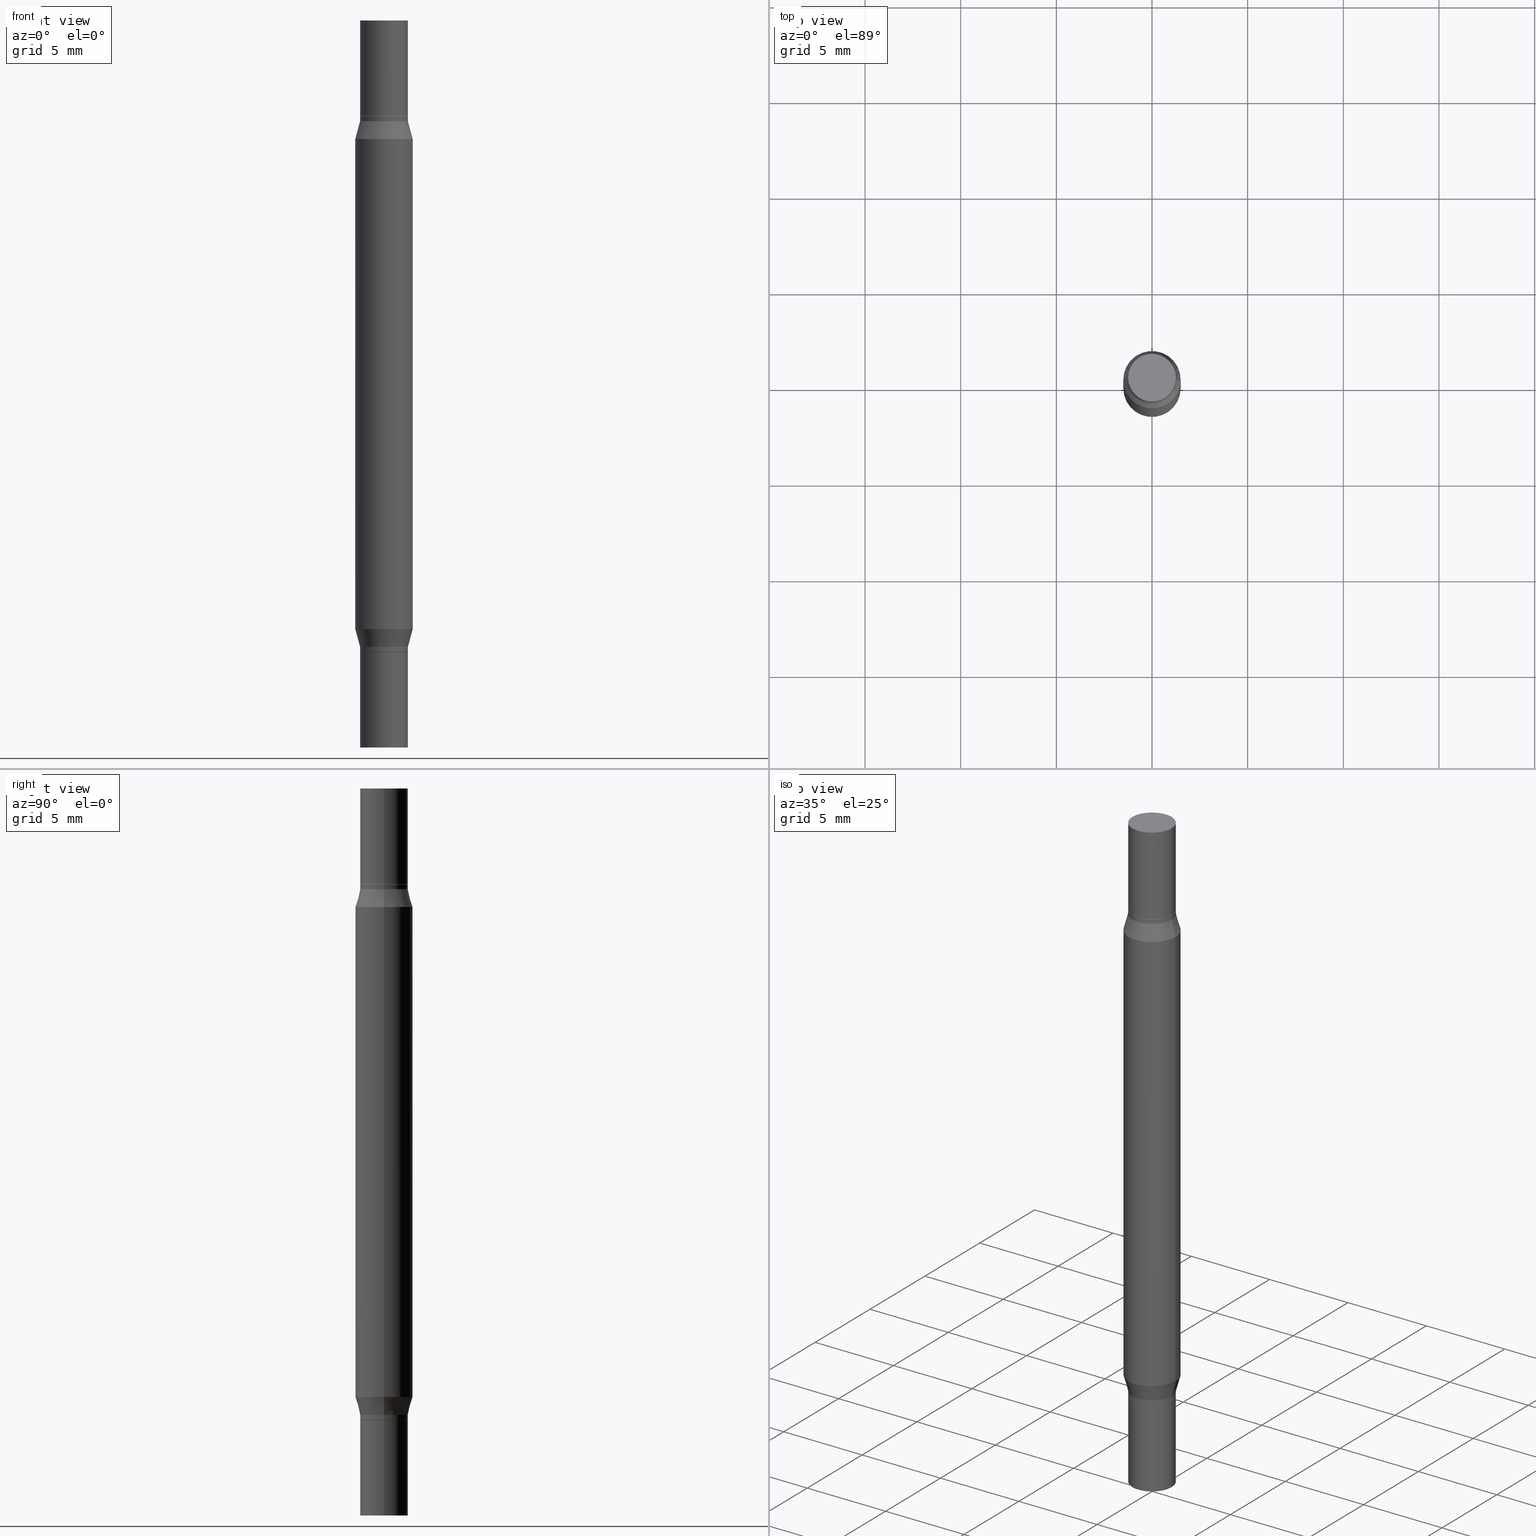
[diagram: canonical four-view strip — front | top / right | iso, engineering-drawing reading convention]
A machine part, canonical four-view strip (front | top / right | iso — engineering-drawing reading convention). The complete STEP part file that produces these views, byte-faithful:
ISO-10303-21;
HEADER;
FILE_DESCRIPTION (( 'STEP AP203' ),
    '1' );
FILE_NAME ('41417.STEP',
    '2024-03-04T16:08:20',
    ( '' ),
    ( '' ),
    'SwSTEP 2.0',
    'SolidWorks 2023',
    '' );
FILE_SCHEMA (( 'CONFIG_CONTROL_DESIGN' ));
ENDSEC;

DATA;
#1 = CARTESIAN_POINT ( 'NONE',  ( 0.04920000000000000068, -5.567409180549447565E-15, -1.496099999999999985 ) ) ;
#2 = DIRECTION ( 'NONE',  ( -2.445468806185136597E-29, 3.491481338843145583E-15, 1.000000000000000000 ) ) ;
#3 = DIRECTION ( 'NONE',  ( -2.445468806185136597E-29, -3.491805094961124077E-15, -1.000000000000000000 ) ) ;
#4 = DIRECTION ( 'NONE',  ( -2.445468806185136597E-29, 3.491481338843145583E-15, 1.000000000000000000 ) ) ;
#5 = ADVANCED_FACE ( 'NONE', ( #209 ), #276, .F. ) ;
#6 = CARTESIAN_POINT ( 'NONE',  ( 3.175930338592637077E-29, -6.890401399812727626E-16, -0.1973999999999999089 ) ) ;
#7 = DIRECTION ( 'NONE',  ( -2.445468806185136597E-29, -3.491805094961124077E-15, -1.000000000000000000 ) ) ;
#8 = VERTEX_POINT ( 'NONE', #570 ) ;
#9 = APPROVAL_ROLE ( '' ) ;
#10 = DIRECTION ( 'NONE',  ( 1.000000000000000000, -6.982962677686273021E-15, 0.000000000000000000 ) ) ;
#11 = AXIS2_PLACEMENT_3D ( 'NONE', #360, #584, #520 ) ;
#12 = CARTESIAN_POINT ( 'NONE',  ( 3.658665880933582389E-29, -5.223605231043229660E-15, -1.496099999999999985 ) ) ;
#13 = ORIENTED_EDGE ( 'NONE', *, *, #647, .T. ) ;
#14 = CARTESIAN_POINT ( 'NONE',  ( 0.04920000000000000068, -1.030856001175955426E-15, -0.1969000000000000195 ) ) ;
#15 = DIRECTION ( 'NONE',  ( 1.000000000000000000, -6.982962677686271444E-15, 0.000000000000000000 ) ) ;
#16 = ORIENTED_EDGE ( 'NONE', *, *, #552, .T. ) ;
#17 = EDGE_CURVE ( 'NONE', #459, #167, #955, .T. ) ;
#18 = CARTESIAN_POINT ( 'NONE',  ( 0.04920000000000000068, -3.433195779781105028E-16, 1.112302229232114997E-34 ) ) ;
#19 = ORIENTED_EDGE ( 'NONE', *, *, #641, .T. ) ;
#20 = APPROVAL ( #795, 'UNSPECIFIED' ) ;
#21 = DIRECTION ( 'NONE',  ( 2.445468806185136597E-29, 3.491805094961124077E-15, 1.000000000000000000 ) ) ;
#22 = PLANE ( 'NONE',  #883 ) ;
#23 = CARTESIAN_POINT ( 'NONE',  ( 0.000000000000000000, -5.223847416807283040E-15, -1.496099999999999985 ) ) ;
#24 = VERTEX_POINT ( 'NONE', #129 ) ;
#25 = CIRCLE ( 'NONE', #901, 0.04919999999999992435 ) ;
#26 = AXIS2_PLACEMENT_3D ( 'NONE', #262, #931, #554 ) ;
#27 = CARTESIAN_POINT ( 'NONE',  ( 0.000000000000000000, 0.000000000000000000, 0.000000000000000000 ) ) ;
#28 = CARTESIAN_POINT ( 'NONE',  ( 0.000000000000000000, 0.000000000000000000, 0.000000000000000000 ) ) ;
#29 = APPROVAL_PERSON_ORGANIZATION ( #888, #666, #9 ) ;
#30 = CARTESIAN_POINT ( 'NONE',  ( 0.04919999999999993129, -5.567409180549447565E-15, -1.496099999999999985 ) ) ;
#31 = CARTESIAN_POINT ( 'NONE',  ( 3.177153072995728757E-29, -6.872942374337910995E-16, -0.1969000000000000195 ) ) ;
#32 = ORIENTED_EDGE ( 'NONE', *, *, #925, .T. ) ;
#33 = DIRECTION ( 'NONE',  ( -2.445468806185136877E-29, -3.491805094961123683E-15, -1.000000000000000000 ) ) ;
#34 = EDGE_CURVE ( 'NONE', #927, #70, #649, .T. ) ;
#35 =( LENGTH_UNIT ( ) NAMED_UNIT ( * ) SI_UNIT ( $, .METRE. ) );
#36 = APPROVAL_ROLE ( '' ) ;
#37 = ORIENTED_EDGE ( 'NONE', *, *, #707, .F. ) ;
#38 = CARTESIAN_POINT ( 'NONE',  ( -0.04920000000000000068, -4.530281867240153147E-15, -1.496099999999999985 ) ) ;
#39 = DIRECTION ( 'NONE',  ( 1.000000000000000000, -6.982962677686261977E-15, 0.000000000000000000 ) ) ;
#40 = EDGE_LOOP ( 'NONE', ( #513, #16 ) ) ;
#41 = AXIS2_PLACEMENT_3D ( 'NONE', #902, #683, #312 ) ;
#42 = CIRCLE ( 'NONE', #503, 0.04920000000000000068 ) ;
#43 = CARTESIAN_POINT ( 'NONE',  ( 0.000000000000000000, -5.223847416807283040E-15, -1.496099999999999985 ) ) ;
#44 = CARTESIAN_POINT ( 'NONE',  ( 3.435617637421960292E-16, 0.04919999999999932067, -0.1969000000000000195 ) ) ;
#45 = ORIENTED_EDGE ( 'NONE', *, *, #214, .T. ) ;
#46 = ADVANCED_FACE ( 'NONE', ( #498 ), #502, .T. ) ;
#47 = EDGE_LOOP ( 'NONE', ( #639, #492 ) ) ;
#48 = FACE_OUTER_BOUND ( 'NONE', #434, .T. ) ;
#49 = DIRECTION ( 'NONE',  ( -2.445468806185136877E-29, -3.491805094961123683E-15, -1.000000000000000000 ) ) ;
#50 = LINE ( 'NONE', #377, #950 ) ;
#51 = ORIENTED_EDGE ( 'NONE', *, *, #547, .F. ) ;
#52 = AXIS2_PLACEMENT_3D ( 'NONE', #166, #469, #458 ) ;
#53 = VECTOR ( 'NONE', #840, 39.37007874015748143 ) ;
#54 = CIRCLE ( 'NONE', #156, 0.04920000000000000068 ) ;
#55 = ORGANIZATION ( 'UNSPECIFIED', 'UNSPECIFIED', '' ) ;
#56 = EDGE_LOOP ( 'NONE', ( #91, #325 ) ) ;
#57 = CARTESIAN_POINT ( 'NONE',  ( 0.04920000000000000068, -3.435617637421643269E-16, 2.399078973691600472E-30 ) ) ;
#58 = CARTESIAN_POINT ( 'NONE',  ( 3.177153072995728757E-29, -4.536132555425014733E-15, -1.299199999999999910 ) ) ;
#59 = ADVANCED_FACE ( 'NONE', ( #123 ), #433, .F. ) ;
#60 = EDGE_LOOP ( 'NONE', ( #548, #273 ) ) ;
#61 = CARTESIAN_POINT ( 'NONE',  ( 3.177153072995728757E-29, -6.872942374337910995E-16, -0.1969000000000000195 ) ) ;
#62 = DIRECTION ( 'NONE',  ( -2.445468806185136597E-29, 3.491481338843145583E-15, 1.000000000000000000 ) ) ;
#63 = ORIENTED_EDGE ( 'NONE', *, *, #357, .F. ) ;
#64 = VECTOR ( 'NONE', #812, 39.37007874015748143 ) ;
#65 = VECTOR ( 'NONE', #471, 39.37007874015747433 ) ;
#66 = LINE ( 'NONE', #308, #532 ) ;
#67 = VECTOR ( 'NONE', #930, 39.37007874015748143 ) ;
#68 = CARTESIAN_POINT ( 'NONE',  ( 3.152453838053259548E-29, -7.225614688928977972E-16, -0.2070000000000000173 ) ) ;
#69 = AXIS2_PLACEMENT_3D ( 'NONE', #422, #912, #240 ) ;
#70 = VERTEX_POINT ( 'NONE', #426 ) ;
#71 = VERTEX_POINT ( 'NONE', #284 ) ;
#72 = ADVANCED_FACE ( 'NONE', ( #438 ), #549, .T. ) ;
#73 = CARTESIAN_POINT ( 'NONE',  ( -0.04919999999999993823, -3.850249674025389328E-16, -0.2070000000000000173 ) ) ;
#74 = PERSON_AND_ORGANIZATION_ROLE ( 'creator' ) ;
#75 = VERTEX_POINT ( 'NONE', #915 ) ;
#76 = ORIENTED_EDGE ( 'NONE', *, *, #251, .F. ) ;
#77 = DIRECTION ( 'NONE',  ( 1.000000000000000000, -6.982962677686261977E-15, 0.000000000000000000 ) ) ;
#78 = CARTESIAN_POINT ( 'NONE',  ( 3.177153072995728757E-29, -6.872942374337910995E-16, -0.1969000000000000195 ) ) ;
#79 = ORIENTED_EDGE ( 'NONE', *, *, #222, .T. ) ;
#80 = ORIENTED_EDGE ( 'NONE', *, *, #265, .T. ) ;
#81 = CARTESIAN_POINT ( 'NONE',  ( 3.152453838053259548E-29, -4.500868593902698784E-15, -1.289099999999999913 ) ) ;
#82 = ADVANCED_FACE ( 'NONE', ( #157 ), #670, .T. ) ;
#83 = FACE_OUTER_BOUND ( 'NONE', #543, .T. ) ;
#84 = VECTOR ( 'NONE', #583, 39.37007874015747433 ) ;
#85 = ORIENTED_EDGE ( 'NONE', *, *, #762, .T. ) ;
#86 = CONICAL_SURFACE ( 'NONE', #351, 0.04919999999999993823, 0.2617993877991500740 ) ;
#87 = AXIS2_PLACEMENT_3D ( 'NONE', #651, #589, #660 ) ;
#88 = VERTEX_POINT ( 'NONE', #764 ) ;
#89 = DIRECTION ( 'NONE',  ( 2.445468806185136597E-29, 3.491805094961124077E-15, 1.000000000000000000 ) ) ;
#90 = ADVANCED_FACE ( 'NONE', ( #613 ), #235, .F. ) ;
#91 = ORIENTED_EDGE ( 'NONE', *, *, #238, .F. ) ;
#92 = DIRECTION ( 'NONE',  ( 1.000000000000000000, -6.982962677686261977E-15, 0.000000000000000000 ) ) ;
#93 = CARTESIAN_POINT ( 'NONE',  ( 0.000000000000000000, -5.223847416807283040E-15, -1.496099999999999985 ) ) ;
#94 = ORIENTED_EDGE ( 'NONE', *, *, #222, .F. ) ;
#95 = DIRECTION ( 'NONE',  ( 1.000000000000000000, -6.982962677686261977E-15, 0.000000000000000000 ) ) ;
#96 = ORIENTED_EDGE ( 'NONE', *, *, #647, .F. ) ;
#97 = CIRCLE ( 'NONE', #652, 0.05904999999999999832 ) ;
#98 = ORIENTED_EDGE ( 'NONE', *, *, #509, .F. ) ;
#99 = CIRCLE ( 'NONE', #514, 0.04919999999999992435 ) ;
#100 = VECTOR ( 'NONE', #650, 39.37007874015747433 ) ;
#101 = CARTESIAN_POINT ( 'NONE',  ( -0.04919999999999993129, -4.886310915316924225E-15, -1.496099999999999985 ) ) ;
#102 = LOCAL_TIME ( 11, 8, 20.00000000000000000, #539 ) ;
#103 = ADVANCED_FACE ( 'NONE', ( #225 ), #594, .T. ) ;
#104 = DIRECTION ( 'NONE',  ( 1.000000000000000000, -6.982962677686265922E-15, 4.876176775795935793E-29 ) ) ;
#105 = DIRECTION ( 'NONE',  ( -2.445468806185136597E-29, 3.491481338843145583E-15, 1.000000000000000000 ) ) ;
#106 = ORIENTED_EDGE ( 'NONE', *, *, #547, .T. ) ;
#107 = UNCERTAINTY_MEASURE_WITH_UNIT (LENGTH_MEASURE( 1.000000000000000082E-05 ), #626, 'distance_accuracy_value', 'NONE');
#108 = DIRECTION ( 'NONE',  ( -2.445468806185136597E-29, -3.491805094961124077E-15, -1.000000000000000000 ) ) ;
#109 = PRODUCT_RELATED_PRODUCT_CATEGORY ( 'detail', '', ( #355 ) ) ;
#110 = APPROVAL_DATE_TIME ( #346, #396 ) ;
#111 = FACE_OUTER_BOUND ( 'NONE', #526, .T. ) ;
#112 = EDGE_LOOP ( 'NONE', ( #737, #499, #943, #94 ) ) ;
#113 = EDGE_CURVE ( 'NONE', #450, #176, #898, .T. ) ;
#114 = CARTESIAN_POINT ( 'NONE',  ( 3.658665880933582389E-29, 2.421857640538043390E-19, 0.000000000000000000 ) ) ;
#115 = CYLINDRICAL_SURFACE ( 'NONE', #158, 0.04919999999999993129 ) ;
#116 = SHAPE_DEFINITION_REPRESENTATION ( #290, #632 ) ;
#117 = DIRECTION ( 'NONE',  ( -2.438088387897959208E-29, -3.491805094961123683E-15, -1.000000000000000000 ) ) ;
#118 = ADVANCED_FACE ( 'NONE', ( #742 ), #841, .T. ) ;
#119 = DIRECTION ( 'NONE',  ( 1.000000000000000000, -6.982962677686273021E-15, 0.000000000000000000 ) ) ;
#120 = AXIS2_PLACEMENT_3D ( 'NONE', #656, #723, #578 ) ;
#121 = AXIS2_PLACEMENT_3D ( 'NONE', #23, #326, #15 ) ;
#122 = AXIS2_PLACEMENT_3D ( 'NONE', #208, #127, #726 ) ;
#123 = FACE_OUTER_BOUND ( 'NONE', #47, .T. ) ;
#124 = ADVANCED_FACE ( 'NONE', ( #83 ), #378, .T. ) ;
#125 = MANIFOLD_SOLID_BREP ( 'Mirror1[3]', #203 ) ;
#126 = MANIFOLD_SOLID_BREP ( 'Mirror1[1]', #295 ) ;
#127 = DIRECTION ( 'NONE',  ( -2.445468806185136597E-29, 3.491481338843145583E-15, 1.000000000000000000 ) ) ;
#128 = LINE ( 'NONE', #829, #84 ) ;
#129 = CARTESIAN_POINT ( 'NONE',  ( -0.04870000000000000023, -3.523458117166149835E-16, -0.1969000000000000195 ) ) ;
#130 = ORIENTED_EDGE ( 'NONE', *, *, #17, .F. ) ;
#131 = FACE_OUTER_BOUND ( 'NONE', #960, .T. ) ;
#132 = CARTESIAN_POINT ( 'NONE',  ( 0.05904999999999999832, -1.263266616151821658E-15, -0.2437607004545535860 ) ) ;
#133 = EDGE_LOOP ( 'NONE', ( #51, #269, #684, #321 ) ) ;
#134 = DATE_TIME_ROLE ( 'classification_date' ) ;
#135 = CIRCLE ( 'NONE', #577, 0.05904999999999999832 ) ;
#136 = EDGE_CURVE ( 'NONE', #531, #522, #97, .T. ) ;
#137 = CYLINDRICAL_SURFACE ( 'NONE', #87, 0.05904999999999999832 ) ;
#138 = AXIS2_PLACEMENT_3D ( 'NONE', #713, #343, #358 ) ;
#139 = AXIS2_PLACEMENT_3D ( 'NONE', #834, #256, #866 ) ;
#140 = CARTESIAN_POINT ( 'NONE',  ( -0.05904999999999999832, -4.818735010038875060E-15, -1.496099999999999985 ) ) ;
#141 = ORIENTED_EDGE ( 'NONE', *, *, #948, .F. ) ;
#142 = CC_DESIGN_PERSON_AND_ORGANIZATION_ASSIGNMENT ( #472, #559, ( #355 ) ) ;
#143 = DIRECTION ( 'NONE',  ( -2.445468806185136877E-29, -3.491805094961123683E-15, -1.000000000000000000 ) ) ;
#144 = ORIENTED_EDGE ( 'NONE', *, *, #172, .F. ) ;
#145 = ORIENTED_EDGE ( 'NONE', *, *, #798, .F. ) ;
#146 = DIRECTION ( 'NONE',  ( 1.000000000000000000, -6.982962677686266711E-15, 0.000000000000000000 ) ) ;
#147 = DIRECTION ( 'NONE',  ( 2.445468806185136597E-29, 3.491805094961124077E-15, 1.000000000000000000 ) ) ;
#148 = DIRECTION ( 'NONE',  ( 1.000000000000000000, -6.982962677686271444E-15, 0.000000000000000000 ) ) ;
#149 = ORIENTED_EDGE ( 'NONE', *, *, #530, .T. ) ;
#150 = EDGE_CURVE ( 'NONE', #969, #896, #780, .T. ) ;
#151 = ORIENTED_EDGE ( 'NONE', *, *, #588, .T. ) ;
#152 = LINE ( 'NONE', #73, #65 ) ;
#153 = ADVANCED_FACE ( 'NONE', ( #525 ), #822, .T. ) ;
#154 = VECTOR ( 'NONE', #155, 39.37007874015748143 ) ;
#155 = DIRECTION ( 'NONE',  ( -0.7071067811865656694, 2.382025595312421833E-15, -0.7071067811865294761 ) ) ;
#156 = AXIS2_PLACEMENT_3D ( 'NONE', #466, #876, #200 ) ;
#157 = FACE_OUTER_BOUND ( 'NONE', #967, .T. ) ;
#158 = AXIS2_PLACEMENT_3D ( 'NONE', #43, #369, #672 ) ;
#159 = EDGE_LOOP ( 'NONE', ( #76, #226, #212, #185 ) ) ;
#160 = CC_DESIGN_PERSON_AND_ORGANIZATION_ASSIGNMENT ( #239, #74, ( #611 ) ) ;
#161 = ADVANCED_FACE ( 'NONE', ( #293 ), #869, .T. ) ;
#162 = CYLINDRICAL_SURFACE ( 'NONE', #374, 0.04920000000000000068 ) ;
#163 = CALENDAR_DATE ( 2024, 4, 3 ) ;
#164 = ADVANCED_FACE ( 'NONE', ( #607 ), #385, .T. ) ;
#165 = CARTESIAN_POINT ( 'NONE',  ( 0.05904999999999999832, -5.636191362924657961E-15, -1.496099999999999985 ) ) ;
#166 = CARTESIAN_POINT ( 'NONE',  ( 0.000000000000000000, -5.223847416807283040E-15, -1.496099999999999985 ) ) ;
#167 = VERTEX_POINT ( 'NONE', #688 ) ;
#168 = DIRECTION ( 'NONE',  ( -2.445468806185136597E-29, -3.491805094961124077E-15, -1.000000000000000000 ) ) ;
#169 = ORIENTED_EDGE ( 'NONE', *, *, #340, .T. ) ;
#170 = DIRECTION ( 'NONE',  ( 2.445468806185136597E-29, 3.491805094961124077E-15, 1.000000000000000000 ) ) ;
#171 = ORIENTED_EDGE ( 'NONE', *, *, #306, .T. ) ;
#172 = EDGE_CURVE ( 'NONE', #250, #475, #550, .T. ) ;
#173 = CARTESIAN_POINT ( 'NONE',  ( -0.04920000000000000068, -4.530281867240153147E-15, -1.299199999999999910 ) ) ;
#174 = VECTOR ( 'NONE', #669, 39.37007874015748143 ) ;
#175 = AXIS2_PLACEMENT_3D ( 'NONE', #484, #546, #316 ) ;
#176 = VERTEX_POINT ( 'NONE', #38 ) ;
#177 = VECTOR ( 'NONE', #143, 39.37007874015748143 ) ;
#178 = FACE_OUTER_BOUND ( 'NONE', #878, .T. ) ;
#179 = DIRECTION ( 'NONE',  ( 2.445468806185136597E-29, 3.491805094961124077E-15, 1.000000000000000000 ) ) ;
#180 = ORIENTED_EDGE ( 'NONE', *, *, #495, .F. ) ;
#181 = FACE_OUTER_BOUND ( 'NONE', #380, .T. ) ;
#182 = VERTEX_POINT ( 'NONE', #270 ) ;
#183 = EDGE_CURVE ( 'NONE', #483, #522, #506, .T. ) ;
#184 = LINE ( 'NONE', #336, #362 ) ;
#185 = ORIENTED_EDGE ( 'NONE', *, *, #540, .F. ) ;
#186 = CARTESIAN_POINT ( 'NONE',  ( 3.177153072995728757E-29, -6.872942374337910995E-16, -0.1969000000000000195 ) ) ;
#187 = ORIENTED_EDGE ( 'NONE', *, *, #371, .F. ) ;
#188 = CIRCLE ( 'NONE', #462, 0.05904999999999999832 ) ;
#189 = CIRCLE ( 'NONE', #903, 0.04919999999999992435 ) ;
#190 = EDGE_CURVE ( 'NONE', #313, #167, #25, .T. ) ;
#191 = LINE ( 'NONE', #101, #333 ) ;
#192 = APPROVAL_PERSON_ORGANIZATION ( #879, #396, #36 ) ;
#193 = CARTESIAN_POINT ( 'NONE',  ( -0.04920000000000000068, -4.886310915316924225E-15, -1.496099999999999985 ) ) ;
#194 = ORIENTED_EDGE ( 'NONE', *, *, #813, .T. ) ;
#195 = CARTESIAN_POINT ( 'NONE',  ( 3.658665880933582389E-29, -5.223605231043229660E-15, -1.496099999999999985 ) ) ;
#196 = CARTESIAN_POINT ( 'NONE',  ( 3.152453838053259548E-29, -7.225614688928977972E-16, -0.2070000000000000173 ) ) ;
#197 = ADVANCED_FACE ( 'NONE', ( #900 ), #512, .T. ) ;
#198 = PLANE ( 'NONE',  #516 ) ;
#199 = ORIENTED_EDGE ( 'NONE', *, *, #113, .T. ) ;
#200 = DIRECTION ( 'NONE',  ( 1.000000000000000000, -6.982962677686266711E-15, 0.000000000000000000 ) ) ;
#201 = CARTESIAN_POINT ( 'NONE',  ( 3.569033433238669537E-29, -1.281165808971637162E-16, 0.000000000000000000 ) ) ;
#202 = CARTESIAN_POINT ( 'NONE',  ( 0.04919999999999993129, -5.567409180549447565E-15, -1.496099999999999985 ) ) ;
#203 = CLOSED_SHELL ( 'NONE', ( #494, #289, #501, #59 ) ) ;
#204 = DATE_TIME_ROLE ( 'creation_date' ) ;
#205 = AXIS2_PLACEMENT_3D ( 'NONE', #691, #168, #392 ) ;
#206 = VECTOR ( 'NONE', #721, 39.37007874015748143 ) ;
#207 = APPROVAL_PERSON_ORGANIZATION ( #779, #20, #420 ) ;
#208 = CARTESIAN_POINT ( 'NONE',  ( 3.062556691798133272E-29, -4.372519294262821742E-15, -1.252339299545446316 ) ) ;
#209 = FACE_OUTER_BOUND ( 'NONE', #401, .T. ) ;
#210 = DIRECTION ( 'NONE',  ( -1.000000000000000000, 6.982962677686265922E-15, -2.260776888683160832E-33 ) ) ;
#211 = DIRECTION ( 'NONE',  ( -2.445468806185136877E-29, -3.491805094961123683E-15, -1.000000000000000000 ) ) ;
#212 = ORIENTED_EDGE ( 'NONE', *, *, #916, .T. ) ;
#213 = COORDINATED_UNIVERSAL_TIME_OFFSET ( 5, 0, .BEHIND. ) ;
#214 = EDGE_CURVE ( 'NONE', #531, #75, #586, .T. ) ;
#215 = ORIENTED_EDGE ( 'NONE', *, *, #792, .T. ) ;
#216 = VERTEX_POINT ( 'NONE', #449 ) ;
#217 = VECTOR ( 'NONE', #301, 39.37007874015748143 ) ;
#218 = CIRCLE ( 'NONE', #934, 0.04919999999999993823 ) ;
#219 = DIRECTION ( 'NONE',  ( -2.445468806185136877E-29, -3.491805094961123683E-15, -1.000000000000000000 ) ) ;
#220 = LOCAL_TIME ( 11, 8, 20.00000000000000000, #700 ) ;
#221 = DIRECTION ( 'NONE',  ( -2.445468806185136597E-29, 3.491481338843145583E-15, 1.000000000000000000 ) ) ;
#222 = EDGE_CURVE ( 'NONE', #70, #750, #128, .T. ) ;
#223 = LINE ( 'NONE', #523, #298 ) ;
#224 = DIRECTION ( 'NONE',  ( -2.445468806185136877E-29, -3.491805094961123683E-15, -1.000000000000000000 ) ) ;
#225 = FACE_OUTER_BOUND ( 'NONE', #843, .T. ) ;
#226 = ORIENTED_EDGE ( 'NONE', *, *, #517, .T. ) ;
#227 = DIRECTION ( 'NONE',  ( 1.000000000000000000, -6.982962677686265133E-15, 0.000000000000000000 ) ) ;
#228 = FACE_OUTER_BOUND ( 'NONE', #697, .T. ) ;
#229 = CC_DESIGN_PERSON_AND_ORGANIZATION_ASSIGNMENT ( #278, #880, ( #337 ) ) ;
#230 = ORIENTED_EDGE ( 'NONE', *, *, #797, .T. ) ;
#231 = CONICAL_SURFACE ( 'NONE', #842, 0.04919999999999993823, 0.2617993877991500740 ) ;
#232 = PERSON_AND_ORGANIZATION_ROLE ( 'classification_officer' ) ;
#233 = CARTESIAN_POINT ( 'NONE',  ( 3.062556691798133272E-29, -4.372519294262821742E-15, -1.252339299545446316 ) ) ;
#234 = AXIS2_PLACEMENT_3D ( 'NONE', #860, #179, #946 ) ;
#235 = PLANE ( 'NONE',  #331 ) ;
#236 = VECTOR ( 'NONE', #363, 39.37007874015748143 ) ;
#237 = ORIENTED_EDGE ( 'NONE', *, *, #150, .T. ) ;
#238 = EDGE_CURVE ( 'NONE', #745, #459, #882, .T. ) ;
#239 = PERSON_AND_ORGANIZATION ( #833, #55 ) ;
#240 = DIRECTION ( 'NONE',  ( 1.000000000000000000, -6.982962677686266711E-15, 4.876176775795936353E-29 ) ) ;
#241 = DIRECTION ( 'NONE',  ( 2.445468806185136597E-29, 3.491805094961124077E-15, 1.000000000000000000 ) ) ;
#242 = ORIENTED_EDGE ( 'NONE', *, *, #183, .F. ) ;
#243 = ADVANCED_FACE ( 'NONE', ( #727 ), #231, .T. ) ;
#244 = CARTESIAN_POINT ( 'NONE',  ( 3.658665880933582389E-29, 2.421857640538043390E-19, 0.000000000000000000 ) ) ;
#245 = ORIENTED_EDGE ( 'NONE', *, *, #238, .T. ) ;
#246 = AXIS2_PLACEMENT_3D ( 'NONE', #365, #954, #646 ) ;
#247 = CARTESIAN_POINT ( 'NONE',  ( 3.569033433238669537E-29, -5.351963997704447472E-15, -1.496099999999999985 ) ) ;
#248 = DIRECTION ( 'NONE',  ( 1.000000000000000000, -6.982962677686270655E-15, 0.000000000000000000 ) ) ;
#249 = CIRCLE ( 'NONE', #610, 0.04919999999999993823 ) ;
#250 = VERTEX_POINT ( 'NONE', #811 ) ;
#251 = EDGE_CURVE ( 'NONE', #176, #391, #747, .T. ) ;
#252 = FACE_OUTER_BOUND ( 'NONE', #794, .T. ) ;
#253 = ORIENTED_EDGE ( 'NONE', *, *, #190, .T. ) ;
#254 = DIRECTION ( 'NONE',  ( 0.000000000000000000, 0.000000000000000000, 1.000000000000000000 ) ) ;
#255 = CARTESIAN_POINT ( 'NONE',  ( 3.062556691798133272E-29, -8.509226700344482173E-16, -0.2437607004545535860 ) ) ;
#256 = DIRECTION ( 'NONE',  ( -2.445468806185136597E-29, -3.491805094961124077E-15, -1.000000000000000000 ) ) ;
#257 = ORIENTED_EDGE ( 'NONE', *, *, #897, .F. ) ;
#258 = DESIGN_CONTEXT ( 'detailed design', #657, 'design' ) ;
#259 = DIRECTION ( 'NONE',  ( 1.000000000000000000, -6.982962677686265922E-15, 0.000000000000000000 ) ) ;
#260 = CARTESIAN_POINT ( 'NONE',  ( 3.177153072995728757E-29, -6.872942374337910995E-16, -0.1969000000000000195 ) ) ;
#261 = DIRECTION ( 'NONE',  ( 1.000000000000000000, -6.982962677686266711E-15, 0.000000000000000000 ) ) ;
#262 = CARTESIAN_POINT ( 'NONE',  ( 3.177153072995728757E-29, -6.872942374337910995E-16, -0.1969000000000000195 ) ) ;
#263 = ORIENTED_EDGE ( 'NONE', *, *, #418, .T. ) ;
#264 = VECTOR ( 'NONE', #809, 39.37007874015748143 ) ;
#265 = EDGE_CURVE ( 'NONE', #867, #71, #976, .T. ) ;
#266 = DIRECTION ( 'NONE',  ( 1.000000000000000000, -6.982962677686261977E-15, 0.000000000000000000 ) ) ;
#267 = CC_DESIGN_SECURITY_CLASSIFICATION ( #952, ( #611 ) ) ;
#268 = LINE ( 'NONE', #569, #951 ) ;
#269 = ORIENTED_EDGE ( 'NONE', *, *, #297, .F. ) ;
#270 = CARTESIAN_POINT ( 'NONE',  ( -0.04920000000000000068, -5.989524344509276303E-18, 1.224930569750488453E-30 ) ) ;
#271 = EDGE_CURVE ( 'NONE', #854, #644, #50, .T. ) ;
#272 = CARTESIAN_POINT ( 'NONE',  ( -0.04919999999999993823, -3.682643029467263661E-16, -0.2070000000000000173 ) ) ;
#273 = ORIENTED_EDGE ( 'NONE', *, *, #540, .T. ) ;
#274 = CALENDAR_DATE ( 2024, 4, 3 ) ;
#275 = CARTESIAN_POINT ( 'NONE',  ( -0.04919999999999993129, -4.886310915316924225E-15, -1.496099999999999985 ) ) ;
#276 = PLANE ( 'NONE',  #246 ) ;
#277 = CLOSED_SHELL ( 'NONE', ( #505, #645, #435, #818 ) ) ;
#278 = PERSON_AND_ORGANIZATION ( #833, #55 ) ;
#279 = CIRCLE ( 'NONE', #596, 0.04919999999999993823 ) ;
#280 = VECTOR ( 'NONE', #664, 39.37007874015748143 ) ;
#281 = CARTESIAN_POINT ( 'NONE',  ( 0.04870000000000000023, -1.027364519837112222E-15, -0.1969000000000000195 ) ) ;
#282 = CARTESIAN_POINT ( 'NONE',  ( 0.05904999999999999832, -5.636191362924657961E-15, -1.496099999999999985 ) ) ;
#283 = EDGE_CURVE ( 'NONE', #745, #313, #66, .T. ) ;
#284 = CARTESIAN_POINT ( 'NONE',  ( -0.04920000000000000068, -5.989524344509276303E-18, -0.1969000000000000195 ) ) ;
#285 = DIRECTION ( 'NONE',  ( 2.445468806185136597E-29, 3.491805094961124077E-15, 1.000000000000000000 ) ) ;
#286 = DIRECTION ( 'NONE',  ( -2.438088387897959208E-29, -3.491805094961123683E-15, -1.000000000000000000 ) ) ;
#287 = ORIENTED_EDGE ( 'NONE', *, *, #925, .F. ) ;
#288 = EDGE_CURVE ( 'NONE', #522, #644, #654, .T. ) ;
#289 = ADVANCED_FACE ( 'NONE', ( #816 ), #732, .F. ) ;
#290 = PRODUCT_DEFINITION_SHAPE ( 'NONE', 'NONE',  #337 ) ;
#291 = DIRECTION ( 'NONE',  ( 2.445468806185136597E-29, 3.491805094961124077E-15, 1.000000000000000000 ) ) ;
#292 = DIRECTION ( 'NONE',  ( 1.000000000000000000, -6.982962677686267499E-15, 0.000000000000000000 ) ) ;
#293 = FACE_OUTER_BOUND ( 'NONE', #112, .T. ) ;
#294 = DIMENSIONAL_EXPONENTS ( 1.000000000000000000, 0.000000000000000000, 0.000000000000000000, 0.000000000000000000, 0.000000000000000000, 0.000000000000000000, 0.000000000000000000 ) ;
#295 = CLOSED_SHELL ( 'NONE', ( #46, #161, #849, #82, #90, #5, #153, #561, #775, #886 ) ) ;
#296 = AXIS2_PLACEMENT_3D ( 'NONE', #68, #3, #603 ) ;
#297 = EDGE_CURVE ( 'NONE', #927, #555, #99, .T. ) ;
#298 = VECTOR ( 'NONE', #307, 39.37007874015748143 ) ;
#299 = DIRECTION ( 'NONE',  ( 2.445468806185136597E-29, 3.491805094961124077E-15, 1.000000000000000000 ) ) ;
#300 = AXIS2_PLACEMENT_3D ( 'NONE', #815, #893, #889 ) ;
#301 = DIRECTION ( 'NONE',  ( -2.445468806185136877E-29, -3.491805094961123683E-15, -1.000000000000000000 ) ) ;
#302 = DIRECTION ( 'NONE',  ( 1.000000000000000000, -6.982962677686266711E-15, 0.000000000000000000 ) ) ;
#303 = ORIENTED_EDGE ( 'NONE', *, *, #183, .T. ) ;
#304 = ORIENTED_EDGE ( 'NONE', *, *, #752, .F. ) ;
#305 = ORIENTED_EDGE ( 'NONE', *, *, #297, .T. ) ;
#306 = EDGE_CURVE ( 'NONE', #415, #182, #766, .T. ) ;
#307 = DIRECTION ( 'NONE',  ( 0.7071067811865656694, -7.406779323393341342E-15, -0.7071067811865294761 ) ) ;
#308 = CARTESIAN_POINT ( 'NONE',  ( 0.04870000000000000023, -4.876202837828336250E-15, -1.299199999999999910 ) ) ;
#309 = CARTESIAN_POINT ( 'NONE',  ( 3.152453838053259548E-29, -4.500868593902698784E-15, -1.289099999999999913 ) ) ;
#310 = EDGE_LOOP ( 'NONE', ( #895, #370, #838, #335 ) ) ;
#311 = ORIENTED_EDGE ( 'NONE', *, *, #928, .T. ) ;
#312 = DIRECTION ( 'NONE',  ( 1.000000000000000000, -6.982962677686271444E-15, 0.000000000000000000 ) ) ;
#313 = VERTEX_POINT ( 'NONE', #857 ) ;
#314 = CIRCLE ( 'NONE', #782, 0.04919999999999993823 ) ;
#315 = DATE_AND_TIME ( #686, #102 ) ;
#316 = DIRECTION ( 'NONE',  ( 1.000000000000000000, -6.982962677686271444E-15, 0.000000000000000000 ) ) ;
#317 = CIRCLE ( 'NONE', #658, 0.04919999999999993823 ) ;
#318 = CARTESIAN_POINT ( 'NONE',  ( 3.177153072995728757E-29, -6.872942374337910995E-16, -0.1969000000000000195 ) ) ;
#319 = CC_DESIGN_APPROVAL ( #396, ( #952 ) ) ;
#320 = EDGE_CURVE ( 'NONE', #75, #644, #188, .T. ) ;
#321 = ORIENTED_EDGE ( 'NONE', *, *, #479, .T. ) ;
#322 = CARTESIAN_POINT ( 'NONE',  ( -0.04870000000000000023, -3.523458117166149835E-16, -0.1969000000000000195 ) ) ;
#323 = EDGE_LOOP ( 'NONE', ( #787, #237 ) ) ;
#324 = EDGE_CURVE ( 'NONE', #566, #750, #135, .T. ) ;
#325 = ORIENTED_EDGE ( 'NONE', *, *, #366, .F. ) ;
#326 = DIRECTION ( 'NONE',  ( -2.445468806185136597E-29, -3.491805094961124077E-15, -1.000000000000000000 ) ) ;
#327 = CARTESIAN_POINT ( 'NONE',  ( 0.04919999999999993823, -4.844430357644862519E-15, -1.289099999999999913 ) ) ;
#328 = ORIENTED_EDGE ( 'NONE', *, *, #271, .T. ) ;
#329 = CARTESIAN_POINT ( 'NONE',  ( -0.05904999999999999832, -4.458102632660388560E-16, -0.2437607004545535860 ) ) ;
#330 = ADVANCED_FACE ( 'NONE', ( #228 ), #922, .T. ) ;
#331 = AXIS2_PLACEMENT_3D ( 'NONE', #537, #592, #847 ) ;
#332 = EDGE_CURVE ( 'NONE', #411, #555, #541, .T. ) ;
#333 = VECTOR ( 'NONE', #33, 39.37007874015748143 ) ;
#334 = LINE ( 'NONE', #342, #100 ) ;
#335 = ORIENTED_EDGE ( 'NONE', *, *, #743, .F. ) ;
#336 = CARTESIAN_POINT ( 'NONE',  ( -0.04919999999999993129, 3.495870259939688032E-16, -2.420116064405410264E-30 ) ) ;
#337 = PRODUCT_DEFINITION ( 'UNKNOWN', '', #611, #258 ) ;
#338 = DIRECTION ( 'NONE',  ( 1.000000000000000000, -6.982962677686266711E-15, 0.000000000000000000 ) ) ;
#339 = ORIENTED_EDGE ( 'NONE', *, *, #265, .F. ) ;
#340 = EDGE_CURVE ( 'NONE', #854, #8, #249, .T. ) ;
#341 = DIRECTION ( 'NONE',  ( 1.000000000000000000, -6.982962677686266711E-15, 2.260776888683160490E-33 ) ) ;
#342 = CARTESIAN_POINT ( 'NONE',  ( -0.04919999999999993823, -4.151281567908730128E-15, -1.289099999999999913 ) ) ;
#343 = DIRECTION ( 'NONE',  ( -2.445468806185136597E-29, 3.491481338843145583E-15, 1.000000000000000000 ) ) ;
#344 = EDGE_LOOP ( 'NONE', ( #920, #511, #215, #96 ) ) ;
#345 = DIRECTION ( 'NONE',  ( -2.445468806185136597E-29, 3.491481338843145583E-15, 1.000000000000000000 ) ) ;
#346 = DATE_AND_TIME ( #725, #220 ) ;
#347 = CLOSED_SHELL ( 'NONE', ( #103, #716, #118, #124, #451, #406, #828, #662, #730, #164, #72, #330, #243, #826, #381, #873 ) ) ;
#348 = ORIENTED_EDGE ( 'NONE', *, *, #271, .F. ) ;
#349 = AXIS2_PLACEMENT_3D ( 'NONE', #542, #170, #788 ) ;
#350 = CC_DESIGN_DATE_AND_TIME_ASSIGNMENT ( #504, #204, ( #337 ) ) ;
#351 = AXIS2_PLACEMENT_3D ( 'NONE', #367, #376, #899 ) ;
#352 = ORIENTED_EDGE ( 'NONE', *, *, #797, .F. ) ;
#353 = CARTESIAN_POINT ( 'NONE',  ( 0.04870000000000000023, -1.027364519837112222E-15, -0.1969000000000000195 ) ) ;
#354 = ORIENTED_EDGE ( 'NONE', *, *, #743, .T. ) ;
#355 = PRODUCT ( '41417', '41417', '', ( #917 ) ) ;
#356 = APPROVAL_STATUS ( 'not_yet_approved' ) ;
#357 = EDGE_CURVE ( 'NONE', #896, #969, #490, .T. ) ;
#358 = DIRECTION ( 'NONE',  ( 1.000000000000000000, -6.982962677686266711E-15, 4.876176775795936353E-29 ) ) ;
#359 = DIRECTION ( 'NONE',  ( -2.445468806185136597E-29, 3.491481338843145583E-15, 1.000000000000000000 ) ) ;
#360 = CARTESIAN_POINT ( 'NONE',  ( 3.152453838053259548E-29, -7.225614688928977972E-16, -0.2070000000000000173 ) ) ;
#361 = CONICAL_SURFACE ( 'NONE', #175, 0.04870000000000000023, 0.7853981633974739252 ) ;
#362 = VECTOR ( 'NONE', #781, 39.37007874015748143 ) ;
#363 = DIRECTION ( 'NONE',  ( -0.7071067811865656694, 2.382025595312421833E-15, -0.7071067811865294761 ) ) ;
#364 = ORIENTED_EDGE ( 'NONE', *, *, #752, .T. ) ;
#365 = CARTESIAN_POINT ( 'NONE',  ( 3.177153072995728757E-29, -6.872942374337910995E-16, -0.1969000000000000195 ) ) ;
#366 = EDGE_CURVE ( 'NONE', #459, #745, #476, .T. ) ;
#367 = CARTESIAN_POINT ( 'NONE',  ( 3.152453838053259548E-29, -7.225614688928977972E-16, -0.2070000000000000173 ) ) ;
#368 = DIRECTION ( 'NONE',  ( -0.000000000000000000, -3.491643216902134830E-15, -1.000000000000000000 ) ) ;
#369 = DIRECTION ( 'NONE',  ( -2.445468806185136597E-29, -3.491805094961124077E-15, -1.000000000000000000 ) ) ;
#370 = ORIENTED_EDGE ( 'NONE', *, *, #615, .T. ) ;
#371 = EDGE_CURVE ( 'NONE', #8, #854, #314, .T. ) ;
#372 = AXIS2_PLACEMENT_3D ( 'NONE', #309, #221, #830 ) ;
#373 = ORIENTED_EDGE ( 'NONE', *, *, #552, .F. ) ;
#374 = AXIS2_PLACEMENT_3D ( 'NONE', #908, #4, #382 ) ;
#375 = CONICAL_SURFACE ( 'NONE', #395, 0.04870000000000000023, 0.7853981633974739252 ) ;
#376 = DIRECTION ( 'NONE',  ( -2.445468806185136597E-29, -3.491805094961124077E-15, -1.000000000000000000 ) ) ;
#377 = CARTESIAN_POINT ( 'NONE',  ( 0.04919999999999993823, -4.844430357644862519E-15, -1.289099999999999913 ) ) ;
#378 = CYLINDRICAL_SURFACE ( 'NONE', #52, 0.05904999999999999832 ) ;
#379 = EDGE_LOOP ( 'NONE', ( #199, #633, #141, #454 ) ) ;
#380 = EDGE_LOOP ( 'NONE', ( #339, #98, #230, #717 ) ) ;
#381 = ADVANCED_FACE ( 'NONE', ( #178 ), #361, .T. ) ;
#382 = DIRECTION ( 'NONE',  ( 1.000000000000000000, -6.982962677686266711E-15, 4.876176775795935793E-29 ) ) ;
#383 = PERSON_AND_ORGANIZATION ( #833, #55 ) ;
#384 = CARTESIAN_POINT ( 'NONE',  ( -0.04920000000000000068, -5.989524344509276303E-18, 1.224930569750488453E-30 ) ) ;
#385 = CYLINDRICAL_SURFACE ( 'NONE', #41, 0.04919999999999993129 ) ;
#386 = ORIENTED_EDGE ( 'NONE', *, *, #150, .F. ) ;
#387 = ORIENTED_EDGE ( 'NONE', *, *, #572, .T. ) ;
#388 = EDGE_CURVE ( 'NONE', #750, #896, #853, .T. ) ;
#389 = DIRECTION ( 'NONE',  ( 1.000000000000000000, -6.982962677686267499E-15, 0.000000000000000000 ) ) ;
#390 = DIRECTION ( 'NONE',  ( 1.000000000000000000, -6.982962677686266711E-15, 0.000000000000000000 ) ) ;
#391 = VERTEX_POINT ( 'NONE', #173 ) ;
#392 = DIRECTION ( 'NONE',  ( 1.000000000000000000, -6.982962677686265922E-15, 0.000000000000000000 ) ) ;
#393 = AXIS2_PLACEMENT_3D ( 'NONE', #58, #2, #148 ) ;
#394 = DIRECTION ( 'NONE',  ( -2.445468806185136597E-29, -3.491805094961124077E-15, -1.000000000000000000 ) ) ;
#395 = AXIS2_PLACEMENT_3D ( 'NONE', #260, #563, #146 ) ;
#396 = APPROVAL ( #529, 'UNSPECIFIED' ) ;
#397 = CIRCLE ( 'NONE', #936, 0.04870000000000000023 ) ;
#398 = EDGE_LOOP ( 'NONE', ( #744, #947, #328, #757 ) ) ;
#399 = ORIENTED_EDGE ( 'NONE', *, *, #707, .T. ) ;
#400 = CARTESIAN_POINT ( 'NONE',  ( 1.829332940466791194E-29, -2.611802615521614830E-15, -0.7480499999999999927 ) ) ;
#401 = EDGE_LOOP ( 'NONE', ( #85, #470 ) ) ;
#402 = ADVANCED_FACE ( 'NONE', ( #468 ), #759, .T. ) ;
#403 = DIRECTION ( 'NONE',  ( -2.445468806185136597E-29, -3.491805094961124077E-15, -1.000000000000000000 ) ) ;
#404 = CARTESIAN_POINT ( 'NONE',  ( -0.04870000000000000023, -3.531879849423174494E-16, -0.1969000000000000195 ) ) ;
#405 = ORIENTED_EDGE ( 'NONE', *, *, #572, .F. ) ;
#406 = ADVANCED_FACE ( 'NONE', ( #754 ), #694, .T. ) ;
#407 = DIRECTION ( 'NONE',  ( 1.000000000000000000, -6.982962677686266711E-15, 4.876176775795935793E-29 ) ) ;
#408 = CLOSED_SHELL ( 'NONE', ( #402, #575, #197, #630 ) ) ;
#409 = DIRECTION ( 'NONE',  ( 1.000000000000000000, -6.982962677686266711E-15, 2.260776888683160490E-33 ) ) ;
#410 = CIRCLE ( 'NONE', #579, 0.04920000000000000068 ) ;
#411 = VERTEX_POINT ( 'NONE', #322 ) ;
#412 = CC_DESIGN_APPROVAL ( #20, ( #337 ) ) ;
#413 = DIRECTION ( 'NONE',  ( 1.000000000000000000, -6.982962677686266711E-15, 2.260776888683160490E-33 ) ) ;
#414 = CARTESIAN_POINT ( 'NONE',  ( -0.05904999999999999832, -1.326250236009622014E-15, -0.7480499999999999927 ) ) ;
#415 = VERTEX_POINT ( 'NONE', #18 ) ;
#416 = DIRECTION ( 'NONE',  ( 1.000000000000000000, -6.982962677686271444E-15, 0.000000000000000000 ) ) ;
#417 = ORIENTED_EDGE ( 'NONE', *, *, #332, .T. ) ;
#418 = EDGE_CURVE ( 'NONE', #71, #216, #673, .T. ) ;
#419 = ORIENTED_EDGE ( 'NONE', *, *, #798, .T. ) ;
#420 = APPROVAL_ROLE ( '' ) ;
#421 = DIRECTION ( 'NONE',  ( 2.445468806185136597E-29, 3.491805094961124077E-15, 1.000000000000000000 ) ) ;
#422 = CARTESIAN_POINT ( 'NONE',  ( 0.000000000000000000, 0.000000000000000000, 0.000000000000000000 ) ) ;
#423 = CC_DESIGN_PERSON_AND_ORGANIZATION_ASSIGNMENT ( #473, #605, ( #611 ) ) ;
#424 = DIRECTION ( 'NONE',  ( 1.000000000000000000, -6.982962677686265922E-15, 2.260776888683160832E-33 ) ) ;
#425 = CIRCLE ( 'NONE', #933, 0.05904999999999999832 ) ;
#426 = CARTESIAN_POINT ( 'NONE',  ( 0.04919999999999993823, -1.066123232635061730E-15, -0.2070000000000000173 ) ) ;
#427 = AXIS2_PLACEMENT_3D ( 'NONE', #776, #865, #95 ) ;
#428 = ORIENTED_EDGE ( 'NONE', *, *, #324, .F. ) ;
#429 = COORDINATED_UNIVERSAL_TIME_OFFSET ( 5, 0, .BEHIND. ) ;
#430 = CIRCLE ( 'NONE', #709, 0.04920000000000000068 ) ;
#431 = CARTESIAN_POINT ( 'NONE',  ( 0.04870000000000000023, -1.027364519837112222E-15, -0.1969000000000000195 ) ) ;
#432 = CARTESIAN_POINT ( 'NONE',  ( 3.177153072995728757E-29, -6.872942374337910995E-16, -0.1969000000000000195 ) ) ;
#433 = PLANE ( 'NONE',  #120 ) ;
#434 = EDGE_LOOP ( 'NONE', ( #253, #932, #442, #538 ) ) ;
#435 = ADVANCED_FACE ( 'NONE', ( #553 ), #162, .T. ) ;
#436 = CARTESIAN_POINT ( 'NONE',  ( -0.04919999999999993823, -3.682643029467263661E-16, -0.2070000000000000173 ) ) ;
#437 = DIRECTION ( 'NONE',  ( 0.7071067811865656694, -2.468850131082446387E-15, 0.7071067811865294761 ) ) ;
#438 = FACE_OUTER_BOUND ( 'NONE', #544, .T. ) ;
#439 = DATE_AND_TIME ( #163, #480 ) ;
#440 = DIRECTION ( 'NONE',  ( 2.438088387897960049E-29, -3.491481338843145188E-15, -1.000000000000000000 ) ) ;
#441 = DIRECTION ( 'NONE',  ( -2.445468806185136597E-29, 3.491481338843145583E-15, 1.000000000000000000 ) ) ;
#442 = ORIENTED_EDGE ( 'NONE', *, *, #340, .F. ) ;
#443 = VECTOR ( 'NONE', #874, 39.37007874015748143 ) ;
#444 = AXIS2_PLACEMENT_3D ( 'NONE', #891, #591, #821 ) ;
#445 = AXIS2_PLACEMENT_3D ( 'NONE', #852, #493, #259 ) ;
#446 = CIRCLE ( 'NONE', #784, 0.04919999999999992435 ) ;
#447 = LINE ( 'NONE', #57, #280 ) ;
#448 = EDGE_CURVE ( 'NONE', #750, #566, #425, .T. ) ;
#449 = CARTESIAN_POINT ( 'NONE',  ( 0.04920000000000000068, -1.030856001175955426E-15, -0.1969000000000000195 ) ) ;
#450 = VERTEX_POINT ( 'NONE', #685 ) ;
#451 = ADVANCED_FACE ( 'NONE', ( #527 ), #622, .T. ) ;
#452 = MANIFOLD_SOLID_BREP ( 'Combine1', #347 ) ;
#453 = FACE_OUTER_BOUND ( 'NONE', #60, .T. ) ;
#454 = ORIENTED_EDGE ( 'NONE', *, *, #916, .F. ) ;
#455 = ORIENTED_EDGE ( 'NONE', *, *, #17, .T. ) ;
#456 = CARTESIAN_POINT ( 'NONE',  ( 0.04920000000000000068, -5.567409180549447565E-15, -1.496099999999999985 ) ) ;
#457 = CARTESIAN_POINT ( 'NONE',  ( -0.04920000000000000068, -4.886310915316924225E-15, -1.496099999999999985 ) ) ;
#458 = DIRECTION ( 'NONE',  ( 1.000000000000000000, -6.982962677686273021E-15, 0.000000000000000000 ) ) ;
#459 = VERTEX_POINT ( 'NONE', #839 ) ;
#460 = ORIENTED_EDGE ( 'NONE', *, *, #448, .T. ) ;
#461 = AXIS2_PLACEMENT_3D ( 'NONE', #12, #62, #973 ) ;
#462 = AXIS2_PLACEMENT_3D ( 'NONE', #233, #612, #474 ) ;
#463 = MANIFOLD_SOLID_BREP ( 'Mirror1[4]', #408 ) ;
#464 = DIRECTION ( 'NONE',  ( -2.445468806185136597E-29, 3.491481338843145583E-15, 1.000000000000000000 ) ) ;
#465 = EDGE_LOOP ( 'NONE', ( #257, #765, #13, #774 ) ) ;
#466 = CARTESIAN_POINT ( 'NONE',  ( 3.177153072995728757E-29, -6.872942374337910995E-16, -0.1969000000000000195 ) ) ;
#467 = EDGE_CURVE ( 'NONE', #734, #566, #152, .T. ) ;
#468 = FACE_OUTER_BOUND ( 'NONE', #939, .T. ) ;
#469 = DIRECTION ( 'NONE',  ( -2.445468806185136597E-29, -3.491805094961124077E-15, -1.000000000000000000 ) ) ;
#470 = ORIENTED_EDGE ( 'NONE', *, *, #858, .T. ) ;
#471 = DIRECTION ( 'NONE',  ( -0.2588190451025213501, -1.597197180879714326E-15, -0.9659258262890682012 ) ) ;
#472 = PERSON_AND_ORGANIZATION ( #833, #55 ) ;
#473 = PERSON_AND_ORGANIZATION ( #833, #55 ) ;
#474 = DIRECTION ( 'NONE',  ( 1.000000000000000000, -6.982962677686273021E-15, 0.000000000000000000 ) ) ;
#475 = VERTEX_POINT ( 'NONE', #14 ) ;
#476 = CIRCLE ( 'NONE', #655, 0.04870000000000000023 ) ;
#477 = DIRECTION ( 'NONE',  ( -0.000000000000000000, -3.491643216902134830E-15, -1.000000000000000000 ) ) ;
#478 = AXIS2_PLACEMENT_3D ( 'NONE', #949, #403, #266 ) ;
#479 = EDGE_CURVE ( 'NONE', #70, #734, #749, .T. ) ;
#480 = LOCAL_TIME ( 11, 8, 20.00000000000000000, #535 ) ;
#481 = EDGE_LOOP ( 'NONE', ( #604, #106, #675, #848 ) ) ;
#482 = CARTESIAN_POINT ( 'NONE',  ( 0.000000000000000000, -5.223847416807283040E-15, -1.496099999999999985 ) ) ;
#483 = VERTEX_POINT ( 'NONE', #640 ) ;
#484 = CARTESIAN_POINT ( 'NONE',  ( 3.177153072995728757E-29, -4.536132555425014733E-15, -1.299199999999999910 ) ) ;
#485 = ORIENTED_EDGE ( 'NONE', *, *, #467, .F. ) ;
#486 = CARTESIAN_POINT ( 'NONE',  ( 3.658665880933582389E-29, 2.421857640538043390E-19, 0.000000000000000000 ) ) ;
#487 = CARTESIAN_POINT ( 'NONE',  ( 3.177153072995728757E-29, -4.536132555425014733E-15, -1.299199999999999910 ) ) ;
#488 = ORIENTED_EDGE ( 'NONE', *, *, #190, .F. ) ;
#489 = DIRECTION ( 'NONE',  ( -2.445468806185136597E-29, 3.491481338843145583E-15, 1.000000000000000000 ) ) ;
#490 = CIRCLE ( 'NONE', #962, 0.05904999999999999832 ) ;
#491 = AXIS2_PLACEMENT_3D ( 'NONE', #432, #285, #890 ) ;
#492 = ORIENTED_EDGE ( 'NONE', *, *, #418, .F. ) ;
#493 = DIRECTION ( 'NONE',  ( 2.445468806185136597E-29, 3.491805094961124077E-15, 1.000000000000000000 ) ) ;
#494 = ADVANCED_FACE ( 'NONE', ( #556 ), #702, .T. ) ;
#495 = EDGE_CURVE ( 'NONE', #167, #313, #533, .T. ) ;
#496 = ORIENTED_EDGE ( 'NONE', *, *, #530, .F. ) ;
#497 = CARTESIAN_POINT ( 'NONE',  ( 0.05904999999999999832, -1.263266616151821658E-15, -0.2437607004545535860 ) ) ;
#498 = FACE_OUTER_BOUND ( 'NONE', #557, .T. ) ;
#499 = ORIENTED_EDGE ( 'NONE', *, *, #467, .T. ) ;
#500 = LINE ( 'NONE', #193, #264 ) ;
#501 = ADVANCED_FACE ( 'NONE', ( #181 ), #628, .T. ) ;
#502 = CYLINDRICAL_SURFACE ( 'NONE', #881, 0.05904999999999999832 ) ;
#503 = AXIS2_PLACEMENT_3D ( 'NONE', #114, #421, #341 ) ;
#504 = DATE_AND_TIME ( #580, #965 ) ;
#505 = ADVANCED_FACE ( 'NONE', ( #712 ), #862, .T. ) ;
#506 = LINE ( 'NONE', #741, #733 ) ;
#507 = CARTESIAN_POINT ( 'NONE',  ( -0.04870000000000000023, -4.190098243109846188E-15, -1.299199999999999910 ) ) ;
#508 = EDGE_CURVE ( 'NONE', #734, #70, #317, .T. ) ;
#509 = EDGE_CURVE ( 'NONE', #88, #867, #410, .T. ) ;
#510 = CARTESIAN_POINT ( 'NONE',  ( 0.05904999999999999832, -4.784863240380196662E-15, -1.252339299545446316 ) ) ;
#511 = ORIENTED_EDGE ( 'NONE', *, *, #897, .T. ) ;
#512 = CYLINDRICAL_SURFACE ( 'NONE', #444, 0.04920000000000000068 ) ;
#513 = ORIENTED_EDGE ( 'NONE', *, *, #509, .T. ) ;
#514 = AXIS2_PLACEMENT_3D ( 'NONE', #6, #89, #389 ) ;
#515 = CIRCLE ( 'NONE', #783, 0.04870000000000000023 ) ;
#516 = AXIS2_PLACEMENT_3D ( 'NONE', #814, #440, #731 ) ;
#517 = EDGE_CURVE ( 'NONE', #176, #450, #856, .T. ) ;
#518 = CARTESIAN_POINT ( 'NONE',  ( 3.175930338592637077E-29, -6.890401399812727626E-16, -0.1973999999999999089 ) ) ;
#519 = CARTESIAN_POINT ( 'NONE',  ( 3.152453838053259548E-29, -4.500868593902698784E-15, -1.289099999999999913 ) ) ;
#520 = DIRECTION ( 'NONE',  ( 1.000000000000000000, -6.982962677686265922E-15, 0.000000000000000000 ) ) ;
#521 = ORIENTED_EDGE ( 'NONE', *, *, #545, .F. ) ;
#522 = VERTEX_POINT ( 'NONE', #497 ) ;
#523 = CARTESIAN_POINT ( 'NONE',  ( 0.04870000000000000023, -1.027364519837112222E-15, -0.1969000000000000195 ) ) ;
#524 = DIRECTION ( 'NONE',  ( 1.000000000000000000, -6.982962677686272233E-15, 0.000000000000000000 ) ) ;
#525 = FACE_OUTER_BOUND ( 'NONE', #574, .T. ) ;
#526 = EDGE_LOOP ( 'NONE', ( #966, #144 ) ) ;
#527 = FACE_OUTER_BOUND ( 'NONE', #778, .T. ) ;
#528 = DIRECTION ( 'NONE',  ( 1.000000000000000000, -6.982962677686271444E-15, 0.000000000000000000 ) ) ;
#529 = APPROVAL_STATUS ( 'not_yet_approved' ) ;
#530 = EDGE_CURVE ( 'NONE', #522, #531, #919, .T. ) ;
#531 = VERTEX_POINT ( 'NONE', #935 ) ;
#532 = VECTOR ( 'NONE', #437, 39.37007874015748143 ) ;
#533 = CIRCLE ( 'NONE', #751, 0.04919999999999992435 ) ;
#534 = CIRCLE ( 'NONE', #845, 0.04920000000000000068 ) ;
#535 = COORDINATED_UNIVERSAL_TIME_OFFSET ( 5, 0, .BEHIND. ) ;
#536 = CARTESIAN_POINT ( 'NONE',  ( 0.000000000000000000, -5.223847416807283040E-15, -1.496099999999999985 ) ) ;
#537 = CARTESIAN_POINT ( 'NONE',  ( 0.000000000000000000, 0.000000000000000000, -0.7480499999999999927 ) ) ;
#538 = ORIENTED_EDGE ( 'NONE', *, *, #637, .F. ) ;
#539 = COORDINATED_UNIVERSAL_TIME_OFFSET ( 5, 0, .BEHIND. ) ;
#540 = EDGE_CURVE ( 'NONE', #391, #627, #565, .T. ) ;
#541 = LINE ( 'NONE', #404, #154 ) ;
#542 = CARTESIAN_POINT ( 'NONE',  ( 3.177153072995728757E-29, -6.872942374337910995E-16, -0.1969000000000000195 ) ) ;
#543 = EDGE_LOOP ( 'NONE', ( #851, #45, #907, #761 ) ) ;
#544 = EDGE_LOOP ( 'NONE', ( #980, #304, #303, #149 ) ) ;
#545 = EDGE_CURVE ( 'NONE', #167, #8, #184, .T. ) ;
#546 = DIRECTION ( 'NONE',  ( -2.445468806185136597E-29, 3.491481338843145583E-15, 1.000000000000000000 ) ) ;
#547 = EDGE_CURVE ( 'NONE', #555, #734, #191, .T. ) ;
#548 = ORIENTED_EDGE ( 'NONE', *, *, #948, .T. ) ;
#549 = CONICAL_SURFACE ( 'NONE', #11, 0.04919999999999993823, 0.2617993877991500740 ) ;
#550 = CIRCLE ( 'NONE', #349, 0.04920000000000000068 ) ;
#551 = VECTOR ( 'NONE', #653, 39.37007874015747433 ) ;
#552 = EDGE_CURVE ( 'NONE', #867, #88, #42, .T. ) ;
#553 = FACE_OUTER_BOUND ( 'NONE', #159, .T. ) ;
#554 = DIRECTION ( 'NONE',  ( 1.000000000000000000, -6.982962677686265922E-15, 2.260776888683160832E-33 ) ) ;
#555 = VERTEX_POINT ( 'NONE', #634 ) ;
#556 = FACE_OUTER_BOUND ( 'NONE', #681, .T. ) ;
#557 = EDGE_LOOP ( 'NONE', ( #428, #387, #63, #910 ) ) ;
#558 = DIRECTION ( 'NONE',  ( 1.000000000000000000, -6.982962677686265133E-15, 0.000000000000000000 ) ) ;
#559 = PERSON_AND_ORGANIZATION_ROLE ( 'design_owner' ) ;
#560 = EDGE_LOOP ( 'NONE', ( #37, #837, #419, #311 ) ) ;
#561 = ADVANCED_FACE ( 'NONE', ( #944 ), #772, .T. ) ;
#562 = CARTESIAN_POINT ( 'NONE',  ( 3.175930338592637077E-29, -4.534386814755593230E-15, -1.298699999999999966 ) ) ;
#563 = DIRECTION ( 'NONE',  ( -2.445468806185136597E-29, -3.491805094961124077E-15, -1.000000000000000000 ) ) ;
#564 = AXIS2_PLACEMENT_3D ( 'NONE', #93, #394, #77 ) ;
#565 = CIRCLE ( 'NONE', #427, 0.04920000000000000068 ) ;
#566 = VERTEX_POINT ( 'NONE', #329 ) ;
#567 = CC_DESIGN_PERSON_AND_ORGANIZATION_ASSIGNMENT ( #383, #232, ( #952 ) ) ;
#568 = DIRECTION ( 'NONE',  ( 1.000000000000000000, -6.982962677686272233E-15, 0.000000000000000000 ) ) ;
#569 = CARTESIAN_POINT ( 'NONE',  ( 0.04919999999999993129, -3.435617637421638339E-16, 2.399078973691597319E-30 ) ) ;
#570 = CARTESIAN_POINT ( 'NONE',  ( -0.04919999999999993823, -4.168040678335177351E-15, -1.289099999999999913 ) ) ;
#571 = DIRECTION ( 'NONE',  ( 2.445468806185136597E-29, 3.491805094961124077E-15, 1.000000000000000000 ) ) ;
#572 = EDGE_CURVE ( 'NONE', #566, #969, #621, .T. ) ;
#573 = LINE ( 'NONE', #30, #67 ) ;
#574 = EDGE_LOOP ( 'NONE', ( #823, #698, #617, #305 ) ) ;
#575 = ADVANCED_FACE ( 'NONE', ( #806 ), #800, .F. ) ;
#576 = DIRECTION ( 'NONE',  ( 2.438088387897959208E-29, 3.491805094961123683E-15, 1.000000000000000000 ) ) ;
#577 = AXIS2_PLACEMENT_3D ( 'NONE', #699, #241, #770 ) ;
#578 = DIRECTION ( 'NONE',  ( -1.000000000000000000, 6.982962677686265922E-15, -2.260776888683160832E-33 ) ) ;
#579 = AXIS2_PLACEMENT_3D ( 'NONE', #486, #789, #413 ) ;
#580 = CALENDAR_DATE ( 2024, 4, 3 ) ;
#581 = AXIS2_PLACEMENT_3D ( 'NONE', #859, #786, #261 ) ;
#582 = CARTESIAN_POINT ( 'NONE',  ( -0.04919999999999992435, -3.515036384909124190E-16, -0.1973999999999999089 ) ) ;
#583 = DIRECTION ( 'NONE',  ( 0.2588190451025213501, -5.180148453816008779E-15, -0.9659258262890682012 ) ) ;
#584 = DIRECTION ( 'NONE',  ( -2.445468806185136597E-29, -3.491805094961124077E-15, -1.000000000000000000 ) ) ;
#585 = FACE_OUTER_BOUND ( 'NONE', #771, .T. ) ;
#586 = LINE ( 'NONE', #140, #803 ) ;
#587 = ORIENTED_EDGE ( 'NONE', *, *, #615, .F. ) ;
#588 = EDGE_CURVE ( 'NONE', #593, #24, #977, .T. ) ;
#589 = DIRECTION ( 'NONE',  ( -2.445468806185136597E-29, -3.491805094961124077E-15, -1.000000000000000000 ) ) ;
#590 = LINE ( 'NONE', #456, #177 ) ;
#591 = DIRECTION ( 'NONE',  ( -2.445468806185136597E-29, -3.491805094961124077E-15, -1.000000000000000000 ) ) ;
#592 = DIRECTION ( 'NONE',  ( 0.000000000000000000, 3.491643216902134435E-15, 1.000000000000000000 ) ) ;
#593 = VERTEX_POINT ( 'NONE', #281 ) ;
#594 = CONICAL_SURFACE ( 'NONE', #372, 0.04919999999999993823, 0.2617993877991500740 ) ;
#595 = AXIS2_PLACEMENT_3D ( 'NONE', #661, #286, #894 ) ;
#596 = AXIS2_PLACEMENT_3D ( 'NONE', #941, #299, #746 ) ;
#597 = DIRECTION ( 'NONE',  ( 2.445468806185136597E-29, 3.491805094961124077E-15, 1.000000000000000000 ) ) ;
#598 = CARTESIAN_POINT ( 'NONE',  ( 3.175930338592637077E-29, -4.534386814755593230E-15, -1.298699999999999966 ) ) ;
#599 = DIRECTION ( 'NONE',  ( 0.000000000000000000, 1.000000000000000000, -4.626330217890369336E-15 ) ) ;
#600 = ORIENTED_EDGE ( 'NONE', *, *, #366, .T. ) ;
#601 = EDGE_CURVE ( 'NONE', #714, #531, #643, .T. ) ;
#602 = DIRECTION ( 'NONE',  ( 2.445468806185136597E-29, 3.491805094961124077E-15, 1.000000000000000000 ) ) ;
#603 = DIRECTION ( 'NONE',  ( 1.000000000000000000, -6.982962677686265922E-15, 0.000000000000000000 ) ) ;
#604 = ORIENTED_EDGE ( 'NONE', *, *, #813, .F. ) ;
#605 = PERSON_AND_ORGANIZATION_ROLE ( 'design_supplier' ) ;
#606 = CARTESIAN_POINT ( 'NONE',  ( 3.177153072995728757E-29, -4.536132555425014733E-15, -1.299199999999999910 ) ) ;
#607 = FACE_OUTER_BOUND ( 'NONE', #614, .T. ) ;
#608 = VERTEX_POINT ( 'NONE', #958 ) ;
#609 = AXIS2_PLACEMENT_3D ( 'NONE', #978, #368, #599 ) ;
#610 = AXIS2_PLACEMENT_3D ( 'NONE', #850, #926, #763 ) ;
#611 = PRODUCT_DEFINITION_FORMATION_WITH_SPECIFIED_SOURCE ( 'ANY', '', #355, .NOT_KNOWN. ) ;
#612 = DIRECTION ( 'NONE',  ( -2.445468806185136597E-29, 3.491481338843145583E-15, 1.000000000000000000 ) ) ;
#613 = FACE_OUTER_BOUND ( 'NONE', #323, .T. ) ;
#614 = EDGE_LOOP ( 'NONE', ( #587, #663, #354, #364 ) ) ;
#615 = EDGE_CURVE ( 'NONE', #892, #714, #877, .T. ) ;
#616 = DIRECTION ( 'NONE',  ( -2.445468806185136597E-29, 3.491481338843145583E-15, 1.000000000000000000 ) ) ;
#617 = ORIENTED_EDGE ( 'NONE', *, *, #808, .T. ) ;
#618 = ORIENTED_EDGE ( 'NONE', *, *, #283, .F. ) ;
#619 = CARTESIAN_POINT ( 'NONE',  ( 3.177153072995728757E-29, -6.872942374337910995E-16, -0.1969000000000000195 ) ) ;
#620 = ORIENTED_EDGE ( 'NONE', *, *, #601, .T. ) ;
#621 = LINE ( 'NONE', #648, #870 ) ;
#622 = CONICAL_SURFACE ( 'NONE', #205, 0.04919999999999993823, 0.2617993877991500740 ) ;
#623 =( NAMED_UNIT ( * ) PLANE_ANGLE_UNIT ( ) SI_UNIT ( $, .RADIAN. ) );
#624 = CIRCLE ( 'NONE', #234, 0.04919999999999992435 ) ;
#625 = CONICAL_SURFACE ( 'NONE', #139, 0.04870000000000000023, 0.7853981633974739252 ) ;
#626 =( CONVERSION_BASED_UNIT ( 'INCH', #636 ) LENGTH_UNIT ( ) NAMED_UNIT ( #294 ) );
#627 = VERTEX_POINT ( 'NONE', #793 ) ;
#628 = CYLINDRICAL_SURFACE ( 'NONE', #824, 0.04920000000000000068 ) ;
#629 =( NAMED_UNIT ( * ) SI_UNIT ( $, .STERADIAN. ) SOLID_ANGLE_UNIT ( ) );
#630 = ADVANCED_FACE ( 'NONE', ( #111 ), #953, .F. ) ;
#631 = DIRECTION ( 'NONE',  ( 2.445468806185136597E-29, 3.491805094961124077E-15, 1.000000000000000000 ) ) ;
#632 = ADVANCED_BREP_SHAPE_REPRESENTATION ( '41417', ( #790, #126, #125, #463, #452, #769 ), #805 ) ;
#633 = ORIENTED_EDGE ( 'NONE', *, *, #251, .T. ) ;
#634 = CARTESIAN_POINT ( 'NONE',  ( -0.04919999999999992435, -3.515036384909124190E-16, -0.1973999999999999089 ) ) ;
#635 = LINE ( 'NONE', #353, #844 ) ;
#636 = LENGTH_MEASURE_WITH_UNIT ( LENGTH_MEASURE( 0.02539999999999999897 ), #35 );
#637 = EDGE_CURVE ( 'NONE', #313, #854, #268, .T. ) ;
#638 = DIRECTION ( 'NONE',  ( 0.7071067811865656694, -7.406779323393341342E-15, -0.7071067811865294761 ) ) ;
#639 = ORIENTED_EDGE ( 'NONE', *, *, #695, .F. ) ;
#640 = CARTESIAN_POINT ( 'NONE',  ( 0.04919999999999993823, -1.066123232635061730E-15, -0.2070000000000000173 ) ) ;
#641 = EDGE_CURVE ( 'NONE', #644, #75, #964, .T. ) ;
#642 = AXIS2_PLACEMENT_3D ( 'NONE', #28, #345, #407 ) ;
#643 = LINE ( 'NONE', #810, #551 ) ;
#644 = VERTEX_POINT ( 'NONE', #510 ) ;
#645 = ADVANCED_FACE ( 'NONE', ( #758 ), #22, .F. ) ;
#646 = DIRECTION ( 'NONE',  ( 1.000000000000000000, -6.982962677686265922E-15, 2.260776888683160832E-33 ) ) ;
#647 = EDGE_CURVE ( 'NONE', #593, #608, #635, .T. ) ;
#648 = CARTESIAN_POINT ( 'NONE',  ( -0.05904999999999999832, -4.818735010038875060E-15, -1.496099999999999985 ) ) ;
#649 = LINE ( 'NONE', #202, #443 ) ;
#650 = DIRECTION ( 'NONE',  ( -0.2588190451025213501, 5.211531920934551042E-15, 0.9659258262890682012 ) ) ;
#651 = CARTESIAN_POINT ( 'NONE',  ( 0.000000000000000000, -5.223847416807283040E-15, -1.496099999999999985 ) ) ;
#652 = AXIS2_PLACEMENT_3D ( 'NONE', #748, #755, #760 ) ;
#653 = DIRECTION ( 'NONE',  ( -0.2588190451025213501, -1.597197180879714326E-15, -0.9659258262890682012 ) ) ;
#654 = LINE ( 'NONE', #282, #706 ) ;
#655 = AXIS2_PLACEMENT_3D ( 'NONE', #606, #909, #528 ) ;
#656 = CARTESIAN_POINT ( 'NONE',  ( 3.435617637421960292E-16, 0.04919999999999932067, -0.1969000000000000195 ) ) ;
#657 = APPLICATION_CONTEXT ( 'configuration controlled 3d designs of mechanical parts and assemblies' ) ;
#658 = AXIS2_PLACEMENT_3D ( 'NONE', #872, #21, #868 ) ;
#659 = CC_DESIGN_APPROVAL ( #666, ( #611 ) ) ;
#660 = DIRECTION ( 'NONE',  ( 1.000000000000000000, -6.982962677686273021E-15, 0.000000000000000000 ) ) ;
#661 = CARTESIAN_POINT ( 'NONE',  ( 3.569033433238669537E-29, -1.281165808971637162E-16, 0.000000000000000000 ) ) ;
#662 = ADVANCED_FACE ( 'NONE', ( #252 ), #696, .F. ) ;
#663 = ORIENTED_EDGE ( 'NONE', *, *, #676, .F. ) ;
#664 = DIRECTION ( 'NONE',  ( -2.445468806185136877E-29, 3.491481338843145188E-15, 1.000000000000000000 ) ) ;
#665 = FACE_OUTER_BOUND ( 'NONE', #344, .T. ) ;
#666 = APPROVAL ( #356, 'UNSPECIFIED' ) ;
#667 = ORIENTED_EDGE ( 'NONE', *, *, #637, .T. ) ;
#668 = DIRECTION ( 'NONE',  ( 1.000000000000000000, -6.982962677686267499E-15, 0.000000000000000000 ) ) ;
#669 = DIRECTION ( 'NONE',  ( -2.445468806185136877E-29, 3.491481338843145188E-15, 1.000000000000000000 ) ) ;
#670 = CONICAL_SURFACE ( 'NONE', #802, 0.04870000000000000023, 0.7853981633974739252 ) ;
#671 = DIRECTION ( 'NONE',  ( 1.000000000000000000, -6.982962677686271444E-15, 0.000000000000000000 ) ) ;
#672 = DIRECTION ( 'NONE',  ( 1.000000000000000000, -6.982962677686271444E-15, 0.000000000000000000 ) ) ;
#673 = CIRCLE ( 'NONE', #719, 0.04920000000000000068 ) ;
#674 = ORIENTED_EDGE ( 'NONE', *, *, #495, .T. ) ;
#675 = ORIENTED_EDGE ( 'NONE', *, *, #508, .T. ) ;
#676 = EDGE_CURVE ( 'NONE', #608, #892, #624, .T. ) ;
#677 = CARTESIAN_POINT ( 'NONE',  ( 3.175930338592637077E-29, -6.890401399812727626E-16, -0.1973999999999999089 ) ) ;
#678 = CARTESIAN_POINT ( 'NONE',  ( -0.04920000000000000068, 3.495870259939692963E-16, -2.420116064405413767E-30 ) ) ;
#679 = EDGE_CURVE ( 'NONE', #8, #75, #334, .T. ) ;
#680 = ORIENTED_EDGE ( 'NONE', *, *, #448, .F. ) ;
#681 = EDGE_LOOP ( 'NONE', ( #373, #80, #263, #352 ) ) ;
#682 = EDGE_CURVE ( 'NONE', #714, #483, #218, .T. ) ;
#683 = DIRECTION ( 'NONE',  ( -2.445468806185136597E-29, -3.491805094961124077E-15, -1.000000000000000000 ) ) ;
#684 = ORIENTED_EDGE ( 'NONE', *, *, #34, .T. ) ;
#685 = CARTESIAN_POINT ( 'NONE',  ( 0.04920000000000000068, -5.567166994785393395E-15, -1.496099999999999985 ) ) ;
#686 = CALENDAR_DATE ( 2024, 4, 3 ) ;
#687 = DIRECTION ( 'NONE',  ( 2.445468806185136597E-29, 3.491805094961124077E-15, 1.000000000000000000 ) ) ;
#688 = CARTESIAN_POINT ( 'NONE',  ( -0.04919999999999992435, -4.184799788761624574E-15, -1.298699999999999966 ) ) ;
#689 = APPLICATION_PROTOCOL_DEFINITION ( 'international standard', 'config_control_design', 1994, #937 ) ;
#690 = ORIENTED_EDGE ( 'NONE', *, *, #214, .F. ) ;
#691 = CARTESIAN_POINT ( 'NONE',  ( 3.152453838053259548E-29, -7.225614688928977972E-16, -0.2070000000000000173 ) ) ;
#692 = AXIS2_PLACEMENT_3D ( 'NONE', #195, #940, #39 ) ;
#693 = CIRCLE ( 'NONE', #736, 0.04920000000000000068 ) ;
#694 = CYLINDRICAL_SURFACE ( 'NONE', #121, 0.04919999999999993129 ) ;
#695 = EDGE_CURVE ( 'NONE', #216, #71, #54, .T. ) ;
#696 = PLANE ( 'NONE',  #26 ) ;
#697 = EDGE_LOOP ( 'NONE', ( #690, #496, #756, #19 ) ) ;
#698 = ORIENTED_EDGE ( 'NONE', *, *, #762, .F. ) ;
#699 = CARTESIAN_POINT ( 'NONE',  ( 3.062556691798133272E-29, -8.509226700344482173E-16, -0.2437607004545535860 ) ) ;
#700 = COORDINATED_UNIVERSAL_TIME_OFFSET ( 5, 0, .BEHIND. ) ;
#701 = EDGE_LOOP ( 'NONE', ( #832, #739 ) ) ;
#702 = CYLINDRICAL_SURFACE ( 'NONE', #478, 0.04920000000000000068 ) ;
#703 = ORIENTED_EDGE ( 'NONE', *, *, #283, .T. ) ;
#704 = APPLICATION_PROTOCOL_DEFINITION ( 'international standard', 'config_control_design', 1994, #657 ) ;
#705 = DIRECTION ( 'NONE',  ( -2.445468806185136597E-29, -3.491805094961124077E-15, -1.000000000000000000 ) ) ;
#706 = VECTOR ( 'NONE', #211, 39.37007874015748143 ) ;
#707 = EDGE_CURVE ( 'NONE', #182, #250, #500, .T. ) ;
#708 = AXIS2_PLACEMENT_3D ( 'NONE', #201, #117, #424 ) ;
#709 = AXIS2_PLACEMENT_3D ( 'NONE', #970, #291, #409 ) ;
#710 = CARTESIAN_POINT ( 'NONE',  ( 0.04919999999999992435, -1.032601903723435019E-15, -0.1973999999999999089 ) ) ;
#711 = ORIENTED_EDGE ( 'NONE', *, *, #172, .T. ) ;
#712 = FACE_OUTER_BOUND ( 'NONE', #379, .T. ) ;
#713 = CARTESIAN_POINT ( 'NONE',  ( 0.000000000000000000, 0.000000000000000000, 0.000000000000000000 ) ) ;
#714 = VERTEX_POINT ( 'NONE', #436 ) ;
#715 = CARTESIAN_POINT ( 'NONE',  ( 0.000000000000000000, -5.223847416807283040E-15, -1.496099999999999985 ) ) ;
#716 = ADVANCED_FACE ( 'NONE', ( #48 ), #785, .T. ) ;
#717 = ORIENTED_EDGE ( 'NONE', *, *, #695, .T. ) ;
#718 = AXIS2_PLACEMENT_3D ( 'NONE', #78, #7, #390 ) ;
#719 = AXIS2_PLACEMENT_3D ( 'NONE', #619, #602, #929 ) ;
#720 = AXIS2_PLACEMENT_3D ( 'NONE', #44, #576, #210 ) ;
#721 = DIRECTION ( 'NONE',  ( -2.445468806185136877E-29, -3.491805094961123683E-15, -1.000000000000000000 ) ) ;
#722 = ORIENTED_EDGE ( 'NONE', *, *, #388, .T. ) ;
#723 = DIRECTION ( 'NONE',  ( 2.438088387897959208E-29, 3.491805094961123683E-15, 1.000000000000000000 ) ) ;
#724 = APPROVAL_DATE_TIME ( #956, #20 ) ;
#725 = CALENDAR_DATE ( 2024, 4, 3 ) ;
#726 = DIRECTION ( 'NONE',  ( 1.000000000000000000, -6.982962677686273021E-15, 0.000000000000000000 ) ) ;
#727 = FACE_OUTER_BOUND ( 'NONE', #398, .T. ) ;
#728 = ORIENTED_EDGE ( 'NONE', *, *, #679, .T. ) ;
#729 = EDGE_LOOP ( 'NONE', ( #171, #32 ) ) ;
#730 = ADVANCED_FACE ( 'NONE', ( #945 ), #375, .T. ) ;
#731 = DIRECTION ( 'NONE',  ( -1.000000000000000000, 6.982962677686265922E-15, -4.876176775795935793E-29 ) ) ;
#732 = PLANE ( 'NONE',  #595 ) ;
#733 = VECTOR ( 'NONE', #968, 39.37007874015747433 ) ;
#734 = VERTEX_POINT ( 'NONE', #272 ) ;
#735 = VECTOR ( 'NONE', #219, 39.37007874015748143 ) ;
#736 = AXIS2_PLACEMENT_3D ( 'NONE', #31, #938, #338 ) ;
#737 = ORIENTED_EDGE ( 'NONE', *, *, #508, .F. ) ;
#738 = CC_DESIGN_DATE_AND_TIME_ASSIGNMENT ( #439, #134, ( #952 ) ) ;
#739 = ORIENTED_EDGE ( 'NONE', *, *, #517, .F. ) ;
#740 = DIRECTION ( 'NONE',  ( 2.445468806185136597E-29, 3.491805094961124077E-15, 1.000000000000000000 ) ) ;
#741 = CARTESIAN_POINT ( 'NONE',  ( 0.04919999999999993823, -1.066123232635061730E-15, -0.2070000000000000173 ) ) ;
#742 = FACE_OUTER_BOUND ( 'NONE', #817, .T. ) ;
#743 = EDGE_CURVE ( 'NONE', #608, #483, #573, .T. ) ;
#744 = ORIENTED_EDGE ( 'NONE', *, *, #679, .F. ) ;
#745 = VERTEX_POINT ( 'NONE', #884 ) ;
#746 = DIRECTION ( 'NONE',  ( 1.000000000000000000, -6.982962677686265922E-15, 0.000000000000000000 ) ) ;
#747 = LINE ( 'NONE', #678, #174 ) ;
#748 = CARTESIAN_POINT ( 'NONE',  ( 3.062556691798133272E-29, -8.509226700344482173E-16, -0.2437607004545535860 ) ) ;
#749 = CIRCLE ( 'NONE', #445, 0.04919999999999993823 ) ;
#750 = VERTEX_POINT ( 'NONE', #132 ) ;
#751 = AXIS2_PLACEMENT_3D ( 'NONE', #562, #489, #568 ) ;
#752 = EDGE_CURVE ( 'NONE', #483, #714, #279, .T. ) ;
#753 = LOCAL_TIME ( 11, 8, 20.00000000000000000, #429 ) ;
#754 = FACE_OUTER_BOUND ( 'NONE', #310, .T. ) ;
#755 = DIRECTION ( 'NONE',  ( 2.445468806185136597E-29, 3.491805094961124077E-15, 1.000000000000000000 ) ) ;
#756 = ORIENTED_EDGE ( 'NONE', *, *, #288, .T. ) ;
#757 = ORIENTED_EDGE ( 'NONE', *, *, #320, .F. ) ;
#758 = FACE_OUTER_BOUND ( 'NONE', #701, .T. ) ;
#759 = CYLINDRICAL_SURFACE ( 'NONE', #564, 0.04920000000000000068 ) ;
#760 = DIRECTION ( 'NONE',  ( 1.000000000000000000, -6.982962677686265133E-15, 0.000000000000000000 ) ) ;
#761 = ORIENTED_EDGE ( 'NONE', *, *, #288, .F. ) ;
#762 = EDGE_CURVE ( 'NONE', #831, #411, #515, .T. ) ;
#763 = DIRECTION ( 'NONE',  ( 1.000000000000000000, -6.982962677686270655E-15, 0.000000000000000000 ) ) ;
#764 = CARTESIAN_POINT ( 'NONE',  ( 0.04920000000000000068, -3.433195779781105028E-16, 1.112302229232114997E-34 ) ) ;
#765 = ORIENTED_EDGE ( 'NONE', *, *, #588, .F. ) ;
#766 = CIRCLE ( 'NONE', #855, 0.04920000000000000068 ) ;
#767 = ORIENTED_EDGE ( 'NONE', *, *, #479, .F. ) ;
#768 = AXIS2_PLACEMENT_3D ( 'NONE', #255, #796, #558 ) ;
#769 = AXIS2_PLACEMENT_3D ( 'NONE', #27, #254, #875 ) ;
#770 = DIRECTION ( 'NONE',  ( 1.000000000000000000, -6.982962677686265133E-15, 0.000000000000000000 ) ) ;
#771 = EDGE_LOOP ( 'NONE', ( #521, #674, #667, #187 ) ) ;
#772 = CYLINDRICAL_SURFACE ( 'NONE', #804, 0.04919999999999993129 ) ;
#773 = DIRECTION ( 'NONE',  ( 0.000000000000000000, 1.000000000000000000, -4.626330217890369336E-15 ) ) ;
#774 = ORIENTED_EDGE ( 'NONE', *, *, #676, .T. ) ;
#775 = ADVANCED_FACE ( 'NONE', ( #975 ), #86, .T. ) ;
#776 = CARTESIAN_POINT ( 'NONE',  ( 3.177153072995728757E-29, -4.536132555425014733E-15, -1.299199999999999910 ) ) ;
#777 = DIRECTION ( 'NONE',  ( -2.438088387897960049E-29, 3.491481338843145188E-15, 1.000000000000000000 ) ) ;
#778 = EDGE_LOOP ( 'NONE', ( #887, #620, #861, #242 ) ) ;
#779 = PERSON_AND_ORGANIZATION ( #833, #55 ) ;
#780 = CIRCLE ( 'NONE', #609, 0.05904999999999999832 ) ;
#781 = DIRECTION ( 'NONE',  ( -2.445468806185136877E-29, 3.491481338843145188E-15, 1.000000000000000000 ) ) ;
#782 = AXIS2_PLACEMENT_3D ( 'NONE', #81, #616, #248 ) ;
#783 = AXIS2_PLACEMENT_3D ( 'NONE', #61, #597, #835 ) ;
#784 = AXIS2_PLACEMENT_3D ( 'NONE', #677, #827, #292 ) ;
#785 = CYLINDRICAL_SURFACE ( 'NONE', #138, 0.04919999999999993129 ) ;
#786 = DIRECTION ( 'NONE',  ( 2.445468806185136597E-29, 3.491805094961124077E-15, 1.000000000000000000 ) ) ;
#787 = ORIENTED_EDGE ( 'NONE', *, *, #357, .T. ) ;
#788 = DIRECTION ( 'NONE',  ( 1.000000000000000000, -6.982962677686266711E-15, 0.000000000000000000 ) ) ;
#789 = DIRECTION ( 'NONE',  ( 2.445468806185136597E-29, 3.491805094961124077E-15, 1.000000000000000000 ) ) ;
#790 = MANIFOLD_SOLID_BREP ( 'Body-Move/Copy2[1]', #277 ) ;
#791 = FACE_OUTER_BOUND ( 'NONE', #481, .T. ) ;
#792 = EDGE_CURVE ( 'NONE', #892, #608, #189, .T. ) ;
#793 = CARTESIAN_POINT ( 'NONE',  ( 0.04920000000000000068, -4.879694319167179257E-15, -1.299199999999999910 ) ) ;
#794 = EDGE_LOOP ( 'NONE', ( #151, #807 ) ) ;
#795 = APPROVAL_STATUS ( 'not_yet_approved' ) ;
#796 = DIRECTION ( 'NONE',  ( 2.445468806185136597E-29, 3.491805094961124077E-15, 1.000000000000000000 ) ) ;
#797 = EDGE_CURVE ( 'NONE', #88, #216, #904, .T. ) ;
#798 = EDGE_CURVE ( 'NONE', #415, #475, #590, .T. ) ;
#799 = CYLINDRICAL_SURFACE ( 'NONE', #69, 0.04919999999999993129 ) ;
#800 = PLANE ( 'NONE',  #708 ) ;
#801 = DIRECTION ( 'NONE',  ( -2.445468806185136597E-29, -3.491805094961124077E-15, -1.000000000000000000 ) ) ;
#802 = AXIS2_PLACEMENT_3D ( 'NONE', #318, #906, #302 ) ;
#803 = VECTOR ( 'NONE', #224, 39.37007874015748143 ) ;
#804 = AXIS2_PLACEMENT_3D ( 'NONE', #482, #108, #416 ) ;
#805 =( GEOMETRIC_REPRESENTATION_CONTEXT ( 3 ) GLOBAL_UNCERTAINTY_ASSIGNED_CONTEXT ( ( #107 ) ) GLOBAL_UNIT_ASSIGNED_CONTEXT ( ( #626, #623, #629 ) ) REPRESENTATION_CONTEXT ( 'NONE', 'WORKASPACE' ) );
#806 = FACE_OUTER_BOUND ( 'NONE', #729, .T. ) ;
#807 = ORIENTED_EDGE ( 'NONE', *, *, #957, .T. ) ;
#808 = EDGE_CURVE ( 'NONE', #831, #927, #223, .T. ) ;
#809 = DIRECTION ( 'NONE',  ( -2.445468806185136877E-29, -3.491805094961123683E-15, -1.000000000000000000 ) ) ;
#810 = CARTESIAN_POINT ( 'NONE',  ( -0.04919999999999993823, -3.850249674025389328E-16, -0.2070000000000000173 ) ) ;
#811 = CARTESIAN_POINT ( 'NONE',  ( -0.04920000000000000068, -5.989524344509276303E-18, -0.1969000000000000195 ) ) ;
#812 = DIRECTION ( 'NONE',  ( -0.7071067811865656694, 7.493145998870420424E-15, 0.7071067811865294761 ) ) ;
#813 = EDGE_CURVE ( 'NONE', #555, #927, #446, .T. ) ;
#814 = CARTESIAN_POINT ( 'NONE',  ( 3.435617637421960292E-16, 0.04919999999999546958, -1.299200000000000133 ) ) ;
#815 = CARTESIAN_POINT ( 'NONE',  ( 3.177153072995728757E-29, -4.536132555425014733E-15, -1.299199999999999910 ) ) ;
#816 = FACE_OUTER_BOUND ( 'NONE', #40, .T. ) ;
#817 = EDGE_LOOP ( 'NONE', ( #245, #455, #488, #618 ) ) ;
#818 = ADVANCED_FACE ( 'NONE', ( #453 ), #198, .F. ) ;
#819 = CARTESIAN_POINT ( 'NONE',  ( 3.062556691798133272E-29, -8.509226700344482173E-16, -0.2437607004545535860 ) ) ;
#820 = CARTESIAN_POINT ( 'NONE',  ( 0.05904999999999999832, -2.143706588895405113E-15, -0.7480499999999999927 ) ) ;
#821 = DIRECTION ( 'NONE',  ( 1.000000000000000000, -6.982962677686261977E-15, 0.000000000000000000 ) ) ;
#822 = CONICAL_SURFACE ( 'NONE', #718, 0.04870000000000000023, 0.7853981633974739252 ) ;
#823 = ORIENTED_EDGE ( 'NONE', *, *, #332, .F. ) ;
#824 = AXIS2_PLACEMENT_3D ( 'NONE', #715, #705, #92 ) ;
#825 = LINE ( 'NONE', #963, #236 ) ;
#826 = ADVANCED_FACE ( 'NONE', ( #585 ), #799, .T. ) ;
#827 = DIRECTION ( 'NONE',  ( 2.445468806185136597E-29, 3.491805094961124077E-15, 1.000000000000000000 ) ) ;
#828 = ADVANCED_FACE ( 'NONE', ( #665 ), #625, .T. ) ;
#829 = CARTESIAN_POINT ( 'NONE',  ( 0.04919999999999993823, -1.066123232635061730E-15, -0.2070000000000000173 ) ) ;
#830 = DIRECTION ( 'NONE',  ( 1.000000000000000000, -6.982962677686270655E-15, 0.000000000000000000 ) ) ;
#831 = VERTEX_POINT ( 'NONE', #431 ) ;
#832 = ORIENTED_EDGE ( 'NONE', *, *, #113, .F. ) ;
#833 = PERSON ( 'UNSPECIFIED', 'UNSPECIFIED', 'UNSPECIFIED', ('UNSPECIFIED'), ('UNSPECIFIED'), ('UNSPECIFIED') ) ;
#834 = CARTESIAN_POINT ( 'NONE',  ( 3.177153072995728757E-29, -6.872942374337910995E-16, -0.1969000000000000195 ) ) ;
#835 = DIRECTION ( 'NONE',  ( 1.000000000000000000, -6.982962677686266711E-15, 0.000000000000000000 ) ) ;
#836 = CARTESIAN_POINT ( 'NONE',  ( 3.177153072995728757E-29, -4.536132555425014733E-15, -1.299199999999999910 ) ) ;
#837 = ORIENTED_EDGE ( 'NONE', *, *, #306, .F. ) ;
#838 = ORIENTED_EDGE ( 'NONE', *, *, #682, .T. ) ;
#839 = CARTESIAN_POINT ( 'NONE',  ( -0.04870000000000000023, -4.187449015935734987E-15, -1.299199999999999910 ) ) ;
#840 = DIRECTION ( 'NONE',  ( -2.445468806185136877E-29, -3.491805094961123683E-15, -1.000000000000000000 ) ) ;
#841 = CONICAL_SURFACE ( 'NONE', #961, 0.04870000000000000023, 0.7853981633974739252 ) ;
#842 = AXIS2_PLACEMENT_3D ( 'NONE', #519, #359, #972 ) ;
#843 = EDGE_LOOP ( 'NONE', ( #169, #728, #923, #348 ) ) ;
#844 = VECTOR ( 'NONE', #638, 39.37007874015748143 ) ;
#845 = AXIS2_PLACEMENT_3D ( 'NONE', #487, #105, #942 ) ;
#846 = DIRECTION ( 'NONE',  ( -2.445468806185136597E-29, -3.491805094961124077E-15, -1.000000000000000000 ) ) ;
#847 = DIRECTION ( 'NONE',  ( 0.000000000000000000, 1.000000000000000000, -3.491643216902134435E-15 ) ) ;
#848 = ORIENTED_EDGE ( 'NONE', *, *, #34, .F. ) ;
#849 = ADVANCED_FACE ( 'NONE', ( #791 ), #115, .T. ) ;
#850 = CARTESIAN_POINT ( 'NONE',  ( 3.152453838053259548E-29, -4.500868593902698784E-15, -1.289099999999999913 ) ) ;
#851 = ORIENTED_EDGE ( 'NONE', *, *, #136, .F. ) ;
#852 = CARTESIAN_POINT ( 'NONE',  ( 3.152453838053259548E-29, -7.225614688928977972E-16, -0.2070000000000000173 ) ) ;
#853 = LINE ( 'NONE', #165, #53 ) ;
#854 = VERTEX_POINT ( 'NONE', #327 ) ;
#855 = AXIS2_PLACEMENT_3D ( 'NONE', #244, #687, #914 ) ;
#856 = CIRCLE ( 'NONE', #692, 0.04920000000000000068 ) ;
#857 = CARTESIAN_POINT ( 'NONE',  ( 0.04919999999999992435, -4.877948578497757754E-15, -1.298699999999999966 ) ) ;
#858 = EDGE_CURVE ( 'NONE', #411, #831, #979, .T. ) ;
#859 = CARTESIAN_POINT ( 'NONE',  ( 3.177153072995728757E-29, -6.872942374337910995E-16, -0.1969000000000000195 ) ) ;
#860 = CARTESIAN_POINT ( 'NONE',  ( 3.175930338592637077E-29, -6.890401399812727626E-16, -0.1973999999999999089 ) ) ;
#861 = ORIENTED_EDGE ( 'NONE', *, *, #136, .T. ) ;
#862 = CYLINDRICAL_SURFACE ( 'NONE', #642, 0.04920000000000000068 ) ;
#863 = DIRECTION ( 'NONE',  ( 1.000000000000000000, -6.982962677686266711E-15, 0.000000000000000000 ) ) ;
#864 = ORIENTED_EDGE ( 'NONE', *, *, #858, .F. ) ;
#865 = DIRECTION ( 'NONE',  ( -2.445468806185136597E-29, 3.491481338843145583E-15, 1.000000000000000000 ) ) ;
#866 = DIRECTION ( 'NONE',  ( 1.000000000000000000, -6.982962677686266711E-15, 0.000000000000000000 ) ) ;
#867 = VERTEX_POINT ( 'NONE', #384 ) ;
#868 = DIRECTION ( 'NONE',  ( 1.000000000000000000, -6.982962677686265922E-15, 0.000000000000000000 ) ) ;
#869 = CONICAL_SURFACE ( 'NONE', #296, 0.04919999999999993823, 0.2617993877991500740 ) ;
#870 = VECTOR ( 'NONE', #49, 39.37007874015748143 ) ;
#871 = EDGE_LOOP ( 'NONE', ( #485, #767, #79, #460 ) ) ;
#872 = CARTESIAN_POINT ( 'NONE',  ( 3.152453838053259548E-29, -7.225614688928977972E-16, -0.2070000000000000173 ) ) ;
#873 = ADVANCED_FACE ( 'NONE', ( #913 ), #971, .F. ) ;
#874 = DIRECTION ( 'NONE',  ( -2.445468806185136877E-29, -3.491805094961123683E-15, -1.000000000000000000 ) ) ;
#875 = DIRECTION ( 'NONE',  ( 1.000000000000000000, 0.000000000000000000, 0.000000000000000000 ) ) ;
#876 = DIRECTION ( 'NONE',  ( 2.445468806185136597E-29, 3.491805094961124077E-15, 1.000000000000000000 ) ) ;
#877 = LINE ( 'NONE', #275, #206 ) ;
#878 = EDGE_LOOP ( 'NONE', ( #130, #600, #703, #180 ) ) ;
#879 = PERSON_AND_ORGANIZATION ( #833, #55 ) ;
#880 = PERSON_AND_ORGANIZATION_ROLE ( 'creator' ) ;
#881 = AXIS2_PLACEMENT_3D ( 'NONE', #959, #801, #119 ) ;
#882 = CIRCLE ( 'NONE', #393, 0.04870000000000000023 ) ;
#883 = AXIS2_PLACEMENT_3D ( 'NONE', #247, #777, #104 ) ;
#884 = CARTESIAN_POINT ( 'NONE',  ( 0.04870000000000000023, -4.876202837828336250E-15, -1.299199999999999910 ) ) ;
#885 = DIRECTION ( 'NONE',  ( -2.445468806185136877E-29, 3.491481338843145188E-15, 1.000000000000000000 ) ) ;
#886 = ADVANCED_FACE ( 'NONE', ( #131 ), #137, .T. ) ;
#887 = ORIENTED_EDGE ( 'NONE', *, *, #682, .F. ) ;
#888 = PERSON_AND_ORGANIZATION ( #833, #55 ) ;
#889 = DIRECTION ( 'NONE',  ( 1.000000000000000000, -6.982962677686265922E-15, 4.876176775795935793E-29 ) ) ;
#890 = DIRECTION ( 'NONE',  ( 1.000000000000000000, -6.982962677686266711E-15, 0.000000000000000000 ) ) ;
#891 = CARTESIAN_POINT ( 'NONE',  ( 0.000000000000000000, -5.223847416807283040E-15, -1.496099999999999985 ) ) ;
#892 = VERTEX_POINT ( 'NONE', #582 ) ;
#893 = DIRECTION ( 'NONE',  ( -2.438088387897960049E-29, 3.491481338843145188E-15, 1.000000000000000000 ) ) ;
#894 = DIRECTION ( 'NONE',  ( 1.000000000000000000, -6.982962677686265922E-15, 2.260776888683160832E-33 ) ) ;
#895 = ORIENTED_EDGE ( 'NONE', *, *, #792, .F. ) ;
#896 = VERTEX_POINT ( 'NONE', #820 ) ;
#897 = EDGE_CURVE ( 'NONE', #24, #892, #825, .T. ) ;
#898 = CIRCLE ( 'NONE', #461, 0.04920000000000000068 ) ;
#899 = DIRECTION ( 'NONE',  ( 1.000000000000000000, -6.982962677686265922E-15, 0.000000000000000000 ) ) ;
#900 = FACE_OUTER_BOUND ( 'NONE', #560, .T. ) ;
#901 = AXIS2_PLACEMENT_3D ( 'NONE', #598, #441, #524 ) ;
#902 = CARTESIAN_POINT ( 'NONE',  ( 0.000000000000000000, -5.223847416807283040E-15, -1.496099999999999985 ) ) ;
#903 = AXIS2_PLACEMENT_3D ( 'NONE', #518, #147, #668 ) ;
#904 = LINE ( 'NONE', #1, #735 ) ;
#905 = DIRECTION ( 'NONE',  ( 0.2588190451025213501, 1.565188264969621968E-15, 0.9659258262890682012 ) ) ;
#906 = DIRECTION ( 'NONE',  ( -2.445468806185136597E-29, -3.491805094961124077E-15, -1.000000000000000000 ) ) ;
#907 = ORIENTED_EDGE ( 'NONE', *, *, #320, .T. ) ;
#908 = CARTESIAN_POINT ( 'NONE',  ( 0.000000000000000000, 0.000000000000000000, 0.000000000000000000 ) ) ;
#909 = DIRECTION ( 'NONE',  ( -2.445468806185136597E-29, 3.491481338843145583E-15, 1.000000000000000000 ) ) ;
#910 = ORIENTED_EDGE ( 'NONE', *, *, #388, .F. ) ;
#911 = SECURITY_CLASSIFICATION_LEVEL ( 'unclassified' ) ;
#912 = DIRECTION ( 'NONE',  ( -2.445468806185136597E-29, 3.491481338843145583E-15, 1.000000000000000000 ) ) ;
#913 = FACE_OUTER_BOUND ( 'NONE', #56, .T. ) ;
#914 = DIRECTION ( 'NONE',  ( 1.000000000000000000, -6.982962677686266711E-15, 2.260776888683160490E-33 ) ) ;
#915 = CARTESIAN_POINT ( 'NONE',  ( -0.05904999999999999832, -2.206690208753205666E-15, -1.252339299545446316 ) ) ;
#916 = EDGE_CURVE ( 'NONE', #450, #627, #447, .T. ) ;
#917 = MECHANICAL_CONTEXT ( 'NONE', #937, 'mechanical' ) ;
#918 = ORIENTED_EDGE ( 'NONE', *, *, #808, .F. ) ;
#919 = CIRCLE ( 'NONE', #768, 0.05904999999999999832 ) ;
#920 = ORIENTED_EDGE ( 'NONE', *, *, #957, .F. ) ;
#921 = APPROVAL_DATE_TIME ( #315, #666 ) ;
#922 = CYLINDRICAL_SURFACE ( 'NONE', #974, 0.05904999999999999832 ) ;
#923 = ORIENTED_EDGE ( 'NONE', *, *, #641, .F. ) ;
#924 = DIRECTION ( 'NONE',  ( 1.000000000000000000, -6.982962677686265922E-15, 0.000000000000000000 ) ) ;
#925 = EDGE_CURVE ( 'NONE', #182, #415, #430, .T. ) ;
#926 = DIRECTION ( 'NONE',  ( -2.445468806185136597E-29, 3.491481338843145583E-15, 1.000000000000000000 ) ) ;
#927 = VERTEX_POINT ( 'NONE', #710 ) ;
#928 = EDGE_CURVE ( 'NONE', #475, #250, #693, .T. ) ;
#929 = DIRECTION ( 'NONE',  ( 1.000000000000000000, -6.982962677686266711E-15, 0.000000000000000000 ) ) ;
#930 = DIRECTION ( 'NONE',  ( -2.445468806185136877E-29, -3.491805094961123683E-15, -1.000000000000000000 ) ) ;
#931 = DIRECTION ( 'NONE',  ( -2.438088387897959208E-29, -3.491805094961123683E-15, -1.000000000000000000 ) ) ;
#932 = ORIENTED_EDGE ( 'NONE', *, *, #545, .T. ) ;
#933 = AXIS2_PLACEMENT_3D ( 'NONE', #819, #740, #227 ) ;
#934 = AXIS2_PLACEMENT_3D ( 'NONE', #196, #571, #924 ) ;
#935 = CARTESIAN_POINT ( 'NONE',  ( -0.05904999999999999832, -4.458102632660388560E-16, -0.2437607004545535860 ) ) ;
#936 = AXIS2_PLACEMENT_3D ( 'NONE', #186, #631, #863 ) ;
#937 = APPLICATION_CONTEXT ( 'configuration controlled 3d designs of mechanical parts and assemblies' ) ;
#938 = DIRECTION ( 'NONE',  ( 2.445468806185136597E-29, 3.491805094961124077E-15, 1.000000000000000000 ) ) ;
#939 = EDGE_LOOP ( 'NONE', ( #287, #399, #711, #145 ) ) ;
#940 = DIRECTION ( 'NONE',  ( -2.445468806185136597E-29, 3.491481338843145583E-15, 1.000000000000000000 ) ) ;
#941 = CARTESIAN_POINT ( 'NONE',  ( 3.152453838053259548E-29, -7.225614688928977972E-16, -0.2070000000000000173 ) ) ;
#942 = DIRECTION ( 'NONE',  ( 1.000000000000000000, -6.982962677686261977E-15, 0.000000000000000000 ) ) ;
#943 = ORIENTED_EDGE ( 'NONE', *, *, #324, .T. ) ;
#944 = FACE_OUTER_BOUND ( 'NONE', #133, .T. ) ;
#945 = FACE_OUTER_BOUND ( 'NONE', #465, .T. ) ;
#946 = DIRECTION ( 'NONE',  ( 1.000000000000000000, -6.982962677686267499E-15, 0.000000000000000000 ) ) ;
#947 = ORIENTED_EDGE ( 'NONE', *, *, #371, .T. ) ;
#948 = EDGE_CURVE ( 'NONE', #627, #391, #534, .T. ) ;
#949 = CARTESIAN_POINT ( 'NONE',  ( 0.000000000000000000, -5.223847416807283040E-15, -1.496099999999999985 ) ) ;
#950 = VECTOR ( 'NONE', #905, 39.37007874015747433 ) ;
#951 = VECTOR ( 'NONE', #885, 39.37007874015748143 ) ;
#952 = SECURITY_CLASSIFICATION ( '', '', #911 ) ;
#953 = PLANE ( 'NONE',  #720 ) ;
#954 = DIRECTION ( 'NONE',  ( -2.438088387897959208E-29, -3.491805094961123683E-15, -1.000000000000000000 ) ) ;
#955 = LINE ( 'NONE', #507, #64 ) ;
#956 = DATE_AND_TIME ( #274, #753 ) ;
#957 = EDGE_CURVE ( 'NONE', #24, #593, #397, .T. ) ;
#958 = CARTESIAN_POINT ( 'NONE',  ( 0.04919999999999992435, -1.032601903723435019E-15, -0.1973999999999999089 ) ) ;
#959 = CARTESIAN_POINT ( 'NONE',  ( 0.000000000000000000, -5.223847416807283040E-15, -1.496099999999999985 ) ) ;
#960 = EDGE_LOOP ( 'NONE', ( #405, #680, #722, #386 ) ) ;
#961 = AXIS2_PLACEMENT_3D ( 'NONE', #836, #464, #671 ) ;
#962 = AXIS2_PLACEMENT_3D ( 'NONE', #400, #477, #773 ) ;
#963 = CARTESIAN_POINT ( 'NONE',  ( -0.04870000000000000023, -3.531879849423174494E-16, -0.1969000000000000195 ) ) ;
#964 = CIRCLE ( 'NONE', #122, 0.05904999999999999832 ) ;
#965 = LOCAL_TIME ( 11, 8, 20.00000000000000000, #213 ) ;
#966 = ORIENTED_EDGE ( 'NONE', *, *, #928, .F. ) ;
#967 = EDGE_LOOP ( 'NONE', ( #864, #417, #194, #918 ) ) ;
#968 = DIRECTION ( 'NONE',  ( 0.2588190451025213501, -5.180148453816008779E-15, -0.9659258262890682012 ) ) ;
#969 = VERTEX_POINT ( 'NONE', #414 ) ;
#970 = CARTESIAN_POINT ( 'NONE',  ( 3.658665880933582389E-29, 2.421857640538043390E-19, 0.000000000000000000 ) ) ;
#971 = PLANE ( 'NONE',  #300 ) ;
#972 = DIRECTION ( 'NONE',  ( 1.000000000000000000, -6.982962677686270655E-15, 0.000000000000000000 ) ) ;
#973 = DIRECTION ( 'NONE',  ( 1.000000000000000000, -6.982962677686261977E-15, 0.000000000000000000 ) ) ;
#974 = AXIS2_PLACEMENT_3D ( 'NONE', #536, #846, #10 ) ;
#975 = FACE_OUTER_BOUND ( 'NONE', #871, .T. ) ;
#976 = LINE ( 'NONE', #457, #217 ) ;
#977 = CIRCLE ( 'NONE', #491, 0.04870000000000000023 ) ;
#978 = CARTESIAN_POINT ( 'NONE',  ( 1.829332940466791194E-29, -2.611802615521614830E-15, -0.7480499999999999927 ) ) ;
#979 = CIRCLE ( 'NONE', #581, 0.04870000000000000023 ) ;
#980 = ORIENTED_EDGE ( 'NONE', *, *, #601, .F. ) ;
ENDSEC;
END-ISO-10303-21;
